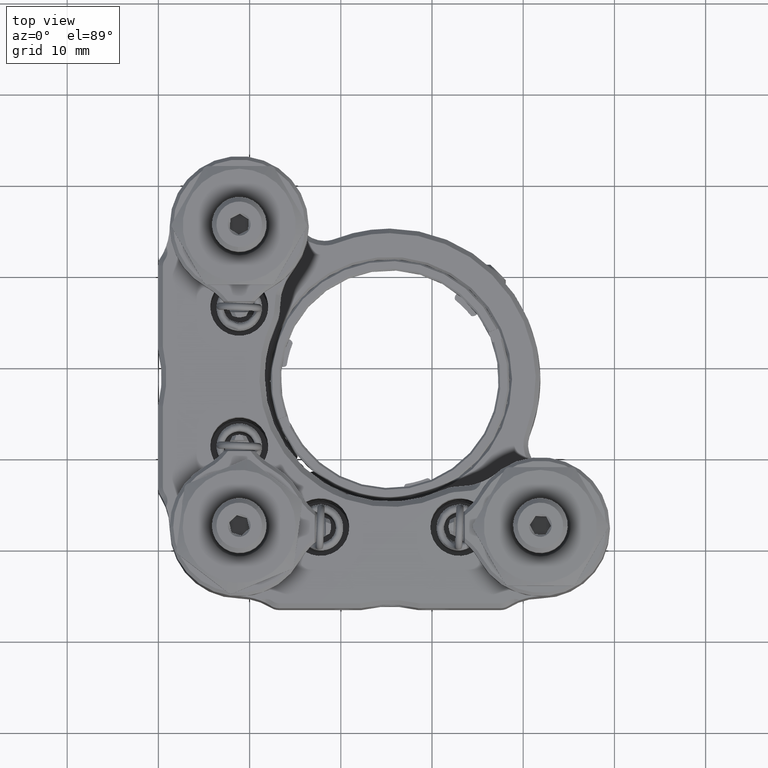
[diagram: clean part render]
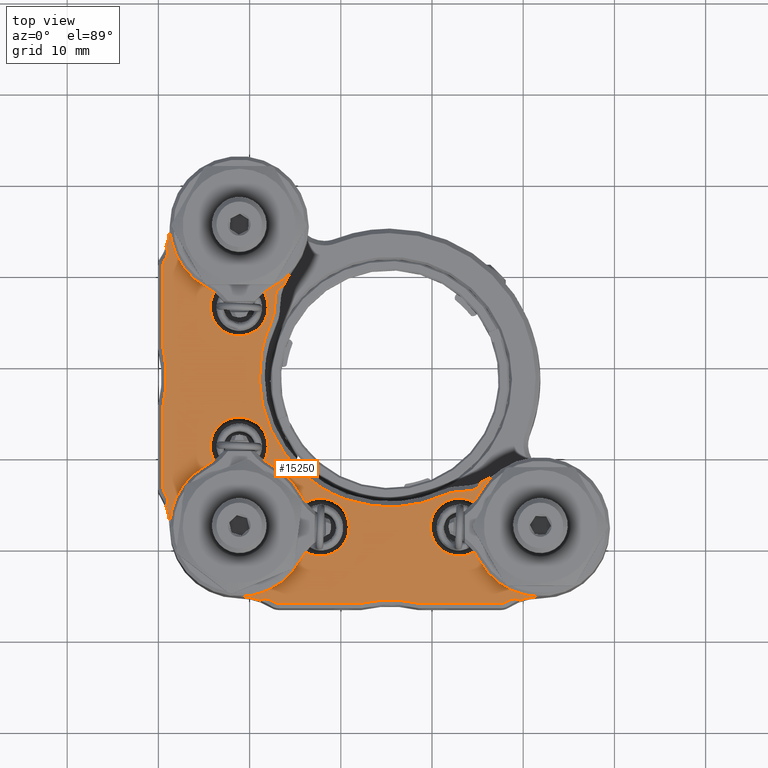
[diagram: same view with one face highlighted and labeled with its STEP entity id]
A machine part, top view. The second image highlights one B-rep face of the part: STEP entity #15250.
In plain terms, the highlighted planar face has unit normal (0, 0, 1).
Its self-contained STEP definition (entity closure, byte-faithful):
#50 = CARTESIAN_POINT ( 'NONE',  ( 0.5157462184768729641, 25.54099495467687575, 38.37670909685328979 ) ) ;
#53 = CIRCLE ( 'NONE', #12682, 6.477000000000017188 ) ;
#54 = AXIS2_PLACEMENT_3D ( 'NONE', #5167, #3294, #23692 ) ;
#154 = VERTEX_POINT ( 'NONE', #13877 ) ;
#274 = CARTESIAN_POINT ( 'NONE',  ( 0.8073501095597914734, 27.29595203836036532, 38.37670909685328269 ) ) ;
#332 = AXIS2_PLACEMENT_3D ( 'NONE', #8948, #13025, #5494 ) ;
#442 = CARTESIAN_POINT ( 'NONE',  ( 11.11921792218020855, 4.087737074255297642, 38.37670909685317611 ) ) ;
#454 = CARTESIAN_POINT ( 'NONE',  ( 37.79965140587442818, 3.782039316883831770, 38.37670909685321874 ) ) ;
#530 = CARTESIAN_POINT ( 'NONE',  ( 0.5056007673306296413, 31.75692873305170494, 38.37670909685328269 ) ) ;
#630 = EDGE_CURVE ( 'NONE', #10352, #3579, #14414, .T. ) ;
#634 = CARTESIAN_POINT ( 'NONE',  ( 0.6779026985890350687, 26.33265588743645935, 38.37670909685329690 ) ) ;
#643 = VECTOR ( 'NONE', #23994, 1000.000000000000000 ) ;
#751 = CARTESIAN_POINT ( 'NONE',  ( 0.7934872215583396171, 41.57520769976713382, 38.37670909685657250 ) ) ;
#753 = CARTESIAN_POINT ( 'NONE',  ( 0.6909074053572769047, 26.40853253802943357, 38.37670909685328979 ) ) ;
#786 = CARTESIAN_POINT ( 'NONE',  ( 0.8224864522627211016, 41.62456706311347432, 38.37670909685328979 ) ) ;
#812 = CARTESIAN_POINT ( 'NONE',  ( 0.5034280512785129780, 40.91932504264391213, 38.37670909685322584 ) ) ;
#816 = CARTESIAN_POINT ( 'NONE',  ( 37.86612365519187051, 3.801313710621909703, 38.37670909685322584 ) ) ;
#847 = CIRCLE ( 'NONE', #10313, 3.175000000000000711 ) ;
#931 = DIRECTION ( 'NONE',  ( -0.000000000000000000, -0.000000000000000000, -1.000000000000000000 ) ) ;
#976 = CARTESIAN_POINT ( 'NONE',  ( 25.38411258108517998, 14.28715967470755643, 38.37670909685328979 ) ) ;
#1050 = CARTESIAN_POINT ( 'NONE',  ( 28.57800755649700264, 3.750010360916995467, 38.37670909685355269 ) ) ;
#1061 = AXIS2_PLACEMENT_3D ( 'NONE', #20661, #5604, #13378 ) ;
#1102 = CARTESIAN_POINT ( 'NONE',  ( 11.96478324836953355, 33.60161499620866010, 38.37670909685328979 ) ) ;
#1142 = CARTESIAN_POINT ( 'NONE',  ( 33.19523443443182487, 15.99604701514680727, 38.37670909685328979 ) ) ;
#1171 = DIRECTION ( 'NONE',  ( -0.000000000000000000, -0.000000000000000000, -1.000000000000000000 ) ) ;
#1219 = CARTESIAN_POINT ( 'NONE',  ( 13.04442159254060307, 21.36758729914661359, 38.37670909685330400 ) ) ;
#1324 = CARTESIAN_POINT ( 'NONE',  ( 0.4972081628125202823, 25.41955961701130207, 38.37670909685325427 ) ) ;
#1332 = EDGE_CURVE ( 'NONE', #1992, #13361, #53, .T. ) ;
#1335 = CARTESIAN_POINT ( 'NONE',  ( 12.38436093444902397, 34.61800084301665237, 38.37670909685328979 ) ) ;
#1354 = EDGE_CURVE ( 'NONE', #13373, #4668, #7536, .T. ) ;
#1373 = CARTESIAN_POINT ( 'NONE',  ( 33.06035827406286387, 15.99498661411283962, 38.37670909685328979 ) ) ;
#1375 = EDGE_CURVE ( 'NONE', #1872, #4503, #13849, .T. ) ;
#1421 = VERTEX_POINT ( 'NONE', #50 ) ;
#1443 = CARTESIAN_POINT ( 'NONE',  ( 22.11588630664790855, 3.748541728913777682, 38.37670909685328979 ) ) ;
#1456 = CARTESIAN_POINT ( 'NONE',  ( 29.67614439951547212, 14.97670351789416721, 38.37670909685329690 ) ) ;
#1459 = B_SPLINE_CURVE_WITH_KNOTS ( 'NONE', 3,
 ( #18095, #19822, #17614, #4634, #21926 ),
 .UNSPECIFIED., .F., .F.,
 ( 4, 1, 4 ),
 ( 0.000000000000000000, 0.0001717361873785056123, 0.0003066707525924578523 ),
 .UNSPECIFIED. ) ;
#1478 = ORIENTED_EDGE ( 'NONE', *, *, #4824, .F. ) ;
#1497 = CARTESIAN_POINT ( 'NONE',  ( 15.55098712502350367, 15.76245352512693110, 38.37670909685328979 ) ) ;
#1508 = ORIENTED_EDGE ( 'NONE', *, *, #19069, .T. ) ;
#1569 = EDGE_CURVE ( 'NONE', #13072, #15829, #20440, .T. ) ;
#1672 = AXIS2_PLACEMENT_3D ( 'NONE', #6050, #17281, #15673 ) ;
#1675 = AXIS2_PLACEMENT_3D ( 'NONE', #10264, #21499, #4337 ) ;
#1749 = ORIENTED_EDGE ( 'NONE', *, *, #6263, .F. ) ;
#1795 = DIRECTION ( 'NONE',  ( -1.000000000000000000, 0.000000000000000000, 0.000000000000000000 ) ) ;
#1803 = VERTEX_POINT ( 'NONE', #1497 ) ;
#1846 = CIRCLE ( 'NONE', #1061, 3.175000000000000711 ) ;
#1851 = CARTESIAN_POINT ( 'NONE',  ( 22.50989134016566950, 3.817717048794514678, 38.37670909685327558 ) ) ;
#1872 = VERTEX_POINT ( 'NONE', #17542 ) ;
#1892 = FACE_OUTER_BOUND ( 'NONE', #2750, .T. ) ;
#1912 = CARTESIAN_POINT ( 'NONE',  ( 12.87492903203330386, 37.61571259436085057, 38.37670909685328979 ) ) ;
#1917 = CARTESIAN_POINT ( 'NONE',  ( 0.5989083507306505183, 16.00086451552266453, 38.37670909685323295 ) ) ;
#1923 = CARTESIAN_POINT ( 'NONE',  ( 32.06173728222097452, 15.88180540215039116, 38.37670909685328269 ) ) ;
#1964 = ORIENTED_EDGE ( 'NONE', *, *, #16211, .T. ) ;
#1992 = VERTEX_POINT ( 'NONE', #16183 ) ;
#2012 = AXIS2_PLACEMENT_3D ( 'NONE', #18091, #1171, #7459 ) ;
#2017 = VERTEX_POINT ( 'NONE', #6548 ) ;
#2071 = AXIS2_PLACEMENT_3D ( 'NONE', #22073, #16757, #1795 ) ;
#2083 = EDGE_CURVE ( 'NONE', #23761, #7370, #3066, .T. ) ;
#2162 = CARTESIAN_POINT ( 'NONE',  ( 31.42067041796330074, 15.66202038868159541, 38.37670909685328979 ) ) ;
#2172 = CARTESIAN_POINT ( 'NONE',  ( 12.87492903203330386, 37.61571259436085057, 38.37670909685328979 ) ) ;
#2181 = B_SPLINE_CURVE_WITH_KNOTS ( 'NONE', 3,
 ( #17730, #13778, #15521, #6013, #4381, #4021, #17366, #11823, #812, #13892, #7968, #21314 ),
 .UNSPECIFIED., .F., .F.,
 ( 4, 1, 1, 1, 1, 1, 1, 1, 1, 4 ),
 ( 7.410741937918042371E-18, 6.788893391203133852E-05, 0.0001353486219821869519, 0.0002025145720739857504, 0.0002695107963978392632, 0.0003364539762344835637, 0.0004022610529734882835, 0.0004682380276493808844, 0.0005345027875534732412, 0.0006011840429156051473 ),
 .UNSPECIFIED. ) ;
#2210 = CARTESIAN_POINT ( 'NONE',  ( 34.60385525189228417, 16.17568582302490654, 38.37670909685329690 ) ) ;
#2250 = AXIS2_PLACEMENT_3D ( 'NONE', #8081, #13292, #6129 ) ;
#2315 = CARTESIAN_POINT ( 'NONE',  ( 22.11588630664790855, 3.748541728913777682, 38.37670909685328979 ) ) ;
#2334 = DIRECTION ( 'NONE',  ( -0.000000000000000000, -0.000000000000000000, -1.000000000000000000 ) ) ;
#2398 = VERTEX_POINT ( 'NONE', #4660 ) ;
#2444 = CIRCLE ( 'NONE', #20617, 1.270000000000014229 ) ;
#2479 = CARTESIAN_POINT ( 'NONE',  ( 0.5157462184771712810, 31.70719983981903312, 38.37670909685329690 ) ) ;
#2487 = CARTESIAN_POINT ( 'NONE',  ( 34.59286376082986436, 9.372721176830863143, 38.37670909685328979 ) ) ;
#2511 = ORIENTED_EDGE ( 'NONE', *, *, #630, .T. ) ;
#2528 = CARTESIAN_POINT ( 'NONE',  ( 37.66637937900900113, 3.756373714913335160, 38.37670909685321874 ) ) ;
#2579 = AXIS2_PLACEMENT_3D ( 'NONE', #4429, #11982, #2804 ) ;
#2655 = AXIS2_PLACEMENT_3D ( 'NONE', #8976, #14666, #14788 ) ;
#2744 = EDGE_CURVE ( 'NONE', #20243, #1992, #3646, .T. ) ;
#2750 = EDGE_LOOP ( 'NONE', ( #15789, #1749, #20061, #1478, #17041, #21359, #8711, #19368, #23674, #3123, #16647, #22559, #6528, #16375, #4289, #21969, #3576, #22901, #9254, #23055, #14993, #8046, #9498, #21907, #14005, #6829, #17867, #8850, #13639, #2511, #6519, #7160, #21742, #5016, #9512, #9898, #17630, #12891, #1508, #20845, #8372, #9209, #5524, #17102, #2801, #16379, #3435, #9116, #6124, #4059, #15035, #16227, #4970, #23203, #16897, #14808, #1964, #21046, #14595, #16311, #7668, #13124, #24238, #14259 ) ) ;
#2801 = ORIENTED_EDGE ( 'NONE', *, *, #9847, .T. ) ;
#2804 = DIRECTION ( 'NONE',  ( 1.000000000000000000, -1.419489643766718154E-14, 0.000000000000000000 ) ) ;
#2809 = CARTESIAN_POINT ( 'NONE',  ( 11.96074622682672839, 33.59106138881092107, 38.37670909685330400 ) ) ;
#2841 = CIRCLE ( 'NONE', #1675, 1.270000000000014229 ) ;
#2888 = EDGE_CURVE ( 'NONE', #9087, #5999, #19029, .T. ) ;
#2912 = CARTESIAN_POINT ( 'NONE',  ( 14.77716877998100564, 40.33147912102782584, 38.37670909685328979 ) ) ;
#2936 = B_SPLINE_CURVE_WITH_KNOTS ( 'NONE', 3,
 ( #5231, #1373, #1142, #6821, #23869, #18179, #20391, #24235, #12507 ),
 .UNSPECIFIED., .F., .F.,
 ( 4, 1, 1, 1, 1, 1, 4 ),
 ( 0.000000000000000000, 0.1464167915703638023, 0.2930927779366250263, 0.4399209478628879344, 0.6268390282286024906, 0.8136058664721685929, 1.000000000000000000 ),
 .UNSPECIFIED. ) ;
#2937 = CARTESIAN_POINT ( 'NONE',  ( 16.28853422908613524, 17.47872148643134693, 38.37670909685330400 ) ) ;
#3011 = DIRECTION ( 'NONE',  ( 1.000000000000000000, 0.000000000000000000, 0.000000000000000000 ) ) ;
#3024 = EDGE_CURVE ( 'NONE', #16133, #6749, #17453, .T. ) ;
#3032 = EDGE_CURVE ( 'NONE', #8537, #8649, #22993, .T. ) ;
#3052 = VERTEX_POINT ( 'NONE', #24408 ) ;
#3063 = CARTESIAN_POINT ( 'NONE',  ( 11.61439956670863261, 24.69039808305371864, 38.37670909685328269 ) ) ;
#3066 = B_SPLINE_CURVE_WITH_KNOTS ( 'NONE', 3,
 ( #13962, #751, #23336, #10253, #14083 ),
 .UNSPECIFIED., .F., .F.,
 ( 4, 1, 4 ),
 ( 7.573910767901059648E-18, 0.0001717361873785664631, 0.0003066707525924598039 ),
 .UNSPECIFIED. ) ;
#3123 = ORIENTED_EDGE ( 'NONE', *, *, #19022, .T. ) ;
#3170 = CARTESIAN_POINT ( 'NONE',  ( 22.16661395337649054, 3.750153826447390149, 38.37670909685326848 ) ) ;
#3178 = EDGE_CURVE ( 'NONE', #8781, #20095, #11582, .T. ) ;
#3183 = VERTEX_POINT ( 'NONE', #18958 ) ;
#3185 = CARTESIAN_POINT ( 'NONE',  ( 23.57972695046473532, 14.42853370877505448, 38.37670909685328979 ) ) ;
#3249 = CARTESIAN_POINT ( 'NONE',  ( 29.50495625950396317, 5.364638560672374545, 38.37670909685328979 ) ) ;
#3294 = DIRECTION ( 'NONE',  ( -0.000000000000000000, -0.000000000000000000, -1.000000000000000000 ) ) ;
#3305 = CARTESIAN_POINT ( 'NONE',  ( 11.35502292562923721, 25.75232571216070454, 38.37670909685328979 ) ) ;
#3386 = CIRCLE ( 'NONE', #4981, 3.174999999999997158 ) ;
#3435 = ORIENTED_EDGE ( 'NONE', *, *, #15772, .T. ) ;
#3444 = CARTESIAN_POINT ( 'NONE',  ( 8.861151733613292336, 12.11409739724833301, 38.37670909685328979 ) ) ;
#3559 = CARTESIAN_POINT ( 'NONE',  ( 0.4955960652788873877, 16.45816576687524702, 38.37670909685329690 ) ) ;
#3574 = CARTESIAN_POINT ( 'NONE',  ( 38.37162139947853490, 4.075432115897538843, 38.37670909685328979 ) ) ;
#3576 = ORIENTED_EDGE ( 'NONE', *, *, #14582, .T. ) ;
#3579 = VERTEX_POINT ( 'NONE', #20422 ) ;
#3584 = CARTESIAN_POINT ( 'NONE',  ( 28.22835391816153106, 3.818546780173556421, 38.37670909685328269 ) ) ;
#3620 = EDGE_CURVE ( 'NONE', #20935, #8649, #18261, .T. ) ;
#3646 = CIRCLE ( 'NONE', #22577, 7.619999999999767404 ) ;
#3649 = CIRCLE ( 'NONE', #1672, 3.175000000000000711 ) ;
#3654 = CARTESIAN_POINT ( 'NONE',  ( 1.241151733613804486, 45.13409739724862391, 38.37670909685328979 ) ) ;
#3682 = DIRECTION ( 'NONE',  ( -1.000000000000000000, 0.000000000000000000, 0.000000000000000000 ) ) ;
#3824 = CARTESIAN_POINT ( 'NONE',  ( 0.5157462184771712810, 31.70719983981903312, 38.37670909685329690 ) ) ;
#3875 = DIRECTION ( 'NONE',  ( 1.000000000000000000, 0.000000000000000000, -0.000000000000000000 ) ) ;
#3985 = CARTESIAN_POINT ( 'NONE',  ( 35.38451088181182058, 17.03809650157964128, 38.37670909685328979 ) ) ;
#4021 = CARTESIAN_POINT ( 'NONE',  ( 0.5483680469870982899, 41.11906931882678151, 38.37670909685322584 ) ) ;
#4059 = ORIENTED_EDGE ( 'NONE', *, *, #19664, .T. ) ;
#4087 = CARTESIAN_POINT ( 'NONE',  ( 0.6735713699257785958, 26.30794381408321669, 38.37670909685328269 ) ) ;
#4093 = EDGE_CURVE ( 'NONE', #14717, #19761, #2936, .T. ) ;
#4209 = VERTEX_POINT ( 'NONE', #15217 ) ;
#4275 = CARTESIAN_POINT ( 'NONE',  ( 37.60052514619064112, 3.749745544953984489, 38.37670909685321874 ) ) ;
#4289 = ORIENTED_EDGE ( 'NONE', *, *, #6775, .F. ) ;
#4316 = CARTESIAN_POINT ( 'NONE',  ( 34.36276693072596089, 16.12787469566814025, 38.37670909685328979 ) ) ;
#4337 = DIRECTION ( 'NONE',  ( 1.000000000000000000, 0.000000000000000000, 0.000000000000000000 ) ) ;
#4354 = EDGE_CURVE ( 'NONE', #4503, #16860, #2444, .T. ) ;
#4381 = CARTESIAN_POINT ( 'NONE',  ( 0.5717616158679867944, 41.18440364421154953, 38.37670909685321163 ) ) ;
#4387 = CARTESIAN_POINT ( 'NONE',  ( 38.10971483574125784, 3.915952070383740935, 38.37670909685328979 ) ) ;
#4429 = CARTESIAN_POINT ( 'NONE',  ( 41.88115173361359211, -1.982902602751784205, 38.37670909685328979 ) ) ;
#4449 = CARTESIAN_POINT ( 'NONE',  ( 12.68769110315134085, 3.882203412879674964, 38.37670909685323295 ) ) ;
#4474 = CARTESIAN_POINT ( 'NONE',  ( 13.20522010324032003, 3.748541728913791449, 38.37670909685328979 ) ) ;
#4503 = VERTEX_POINT ( 'NONE', #7489 ) ;
#4510 = CARTESIAN_POINT ( 'NONE',  ( 37.99438461533913625, 3.851854014365486911, 38.37670909685322584 ) ) ;
#4563 = EDGE_CURVE ( 'NONE', #2398, #22168, #8784, .T. ) ;
#4589 = LINE ( 'NONE', #12136, #16088 ) ;
#4634 = CARTESIAN_POINT ( 'NONE',  ( 12.59457586785475058, 3.939998197404931179, 38.37670909685657961 ) ) ;
#4653 = DIRECTION ( 'NONE',  ( 1.000000000000000000, 5.356564693459339226E-15, 0.000000000000000000 ) ) ;
#4660 = CARTESIAN_POINT ( 'NONE',  ( 35.19131634220313742, 8.465741269369379651, 38.37670909685328979 ) ) ;
#4668 = VERTEX_POINT ( 'NONE', #13423 ) ;
#4680 = CARTESIAN_POINT ( 'NONE',  ( 30.41001246349899390, 15.24141503093074590, 38.37670909685329690 ) ) ;
#4722 = VERTEX_POINT ( 'NONE', #11576 ) ;
#4757 = LINE ( 'NONE', #11011, #643 ) ;
#4793 = CARTESIAN_POINT ( 'NONE',  ( 0.5059964593831558499, 25.49355458321001677, 38.37670909685326137 ) ) ;
#4811 = CARTESIAN_POINT ( 'NONE',  ( 26.47055007258569148, 14.34424125510832759, 38.37670909685328979 ) ) ;
#4824 = EDGE_CURVE ( 'NONE', #8239, #7594, #17078, .T. ) ;
#4889 = CARTESIAN_POINT ( 'NONE',  ( 28.47886205368861567, 3.763109335661994237, 38.37670909685329690 ) ) ;
#4932 = CARTESIAN_POINT ( 'NONE',  ( 24.30103342469781325, 14.35528927151967338, 38.37670909685328269 ) ) ;
#4970 = ORIENTED_EDGE ( 'NONE', *, *, #18121, .F. ) ;
#4981 = AXIS2_PLACEMENT_3D ( 'NONE', #8526, #23856, #21876 ) ;
#5016 = ORIENTED_EDGE ( 'NONE', *, *, #18230, .F. ) ;
#5060 = CIRCLE ( 'NONE', #21219, 3.175000000000000711 ) ;
#5064 = CARTESIAN_POINT ( 'NONE',  ( 19.89970389009817353, 15.39918467721070705, 38.37670909685329690 ) ) ;
#5147 = CARTESIAN_POINT ( 'NONE',  ( 15.61061057018902787, 24.49029287135772037, 38.37670909685328979 ) ) ;
#5167 = CARTESIAN_POINT ( 'NONE',  ( -5.235848266386459393, 45.13409739724875891, 38.37670909685328979 ) ) ;
#5168 = CARTESIAN_POINT ( 'NONE',  ( 0.4958468254235127159, 25.39406388617263488, 38.37670909685325427 ) ) ;
#5184 = CARTESIAN_POINT ( 'NONE',  ( 30.36450516560745072, 15.22380687869121907, 38.37670909685329690 ) ) ;
#5191 = AXIS2_PLACEMENT_3D ( 'NONE', #3249, #12532, #14882 ) ;
#5231 = CARTESIAN_POINT ( 'NONE',  ( 32.99297983232990816, 15.99445688247542385, 38.37670909685328979 ) ) ;
#5232 = CARTESIAN_POINT ( 'NONE',  ( 12.73354826879072732, 35.67853870034507935, 38.37670909685328979 ) ) ;
#5249 = CARTESIAN_POINT ( 'NONE',  ( 0.9935581842928256080, 14.98703000765439697, 38.37670909685329690 ) ) ;
#5319 = DIRECTION ( 'NONE',  ( -0.000000000000000000, -0.000000000000000000, 1.000000000000000000 ) ) ;
#5349 = CARTESIAN_POINT ( 'NONE',  ( 0.6940234623374341716, 30.82469068286791369, 38.37670909685328979 ) ) ;
#5449 = CARTESIAN_POINT ( 'NONE',  ( 13.55112826181630226, 38.56214800916779950, 38.37670909685329690 ) ) ;
#5470 = CARTESIAN_POINT ( 'NONE',  ( 0.7548869613054425276, 30.41019185884011833, 38.37670909685328979 ) ) ;
#5494 = DIRECTION ( 'NONE',  ( -1.000000000000000000, 0.000000000000000000, 0.000000000000000000 ) ) ;
#5496 = DIRECTION ( 'NONE',  ( 0.000000000000000000, 0.000000000000000000, 1.000000000000000000 ) ) ;
#5524 = ORIENTED_EDGE ( 'NONE', *, *, #8772, .F. ) ;
#5580 = CIRCLE ( 'NONE', #54, 6.477000000000024293 ) ;
#5604 = DIRECTION ( 'NONE',  ( -0.000000000000000000, -0.000000000000000000, -1.000000000000000000 ) ) ;
#5646 = CARTESIAN_POINT ( 'NONE',  ( 0.4955960652788873877, 16.45816576687524702, 38.37670909685329690 ) ) ;
#5653 = CARTESIAN_POINT ( 'NONE',  ( 32.43240289522068309, 15.95459418391246409, 38.37670909685328979 ) ) ;
#5686 = CARTESIAN_POINT ( 'NONE',  ( 38.10971483574125784, 3.915952070383740935, 38.37670909685328979 ) ) ;
#5709 = CARTESIAN_POINT ( 'NONE',  ( 0.5157462184771712810, 31.70719983981903312, 38.37670909685329690 ) ) ;
#5771 = CARTESIAN_POINT ( 'NONE',  ( 31.88113468643270920, 15.83285988006845990, 38.37670909685328979 ) ) ;
#5772 = EDGE_CURVE ( 'NONE', #3052, #22732, #17604, .T. ) ;
#5837 = DIRECTION ( 'NONE',  ( 1.000000000000000000, -2.410454112056701981E-14, 0.000000000000000000 ) ) ;
#5855 = DIRECTION ( 'NONE',  ( -0.000000000000000000, -0.000000000000000000, -1.000000000000000000 ) ) ;
#5882 = CARTESIAN_POINT ( 'NONE',  ( 0.7417030516559215414, 15.76112852453236179, 38.37670909685657250 ) ) ;
#5924 = B_SPLINE_CURVE_WITH_KNOTS ( 'NONE', 3,
 ( #3574, #22470, #10992, #15076, #5686 ),
 .UNSPECIFIED., .F., .F.,
 ( 4, 1, 4 ),
 ( 2.409954872719146512E-17, 0.0001717361873784960713, 0.0003066707525924551960 ),
 .UNSPECIFIED. ) ;
#5960 = CARTESIAN_POINT ( 'NONE',  ( 0.7869925526974124175, 27.10424239367214128, 38.37670909685330400 ) ) ;
#5967 = CARTESIAN_POINT ( 'NONE',  ( 0.5018832821274912259, 31.78187945392570768, 38.37670909685331821 ) ) ;
#5979 = CARTESIAN_POINT ( 'NONE',  ( 1.241151733613526931, 12.11409739724833301, 38.37670909685328979 ) ) ;
#5999 = VERTEX_POINT ( 'NONE', #10347 ) ;
#6013 = CARTESIAN_POINT ( 'NONE',  ( 0.5989083507306648402, 41.24733027897404014, 38.37670909685321874 ) ) ;
#6020 = CARTESIAN_POINT ( 'NONE',  ( 32.99630792260517609, 23.05872893302826299, 38.37670909685328979 ) ) ;
#6038 = CARTESIAN_POINT ( 'NONE',  ( 0.4955960652788873877, 16.45816576687524702, 38.37670909685329690 ) ) ;
#6050 = CARTESIAN_POINT ( 'NONE',  ( 17.75115173361346876, 12.11409739724833301, 38.37670909685328979 ) ) ;
#6091 = CARTESIAN_POINT ( 'NONE',  ( 0.4956722723001658615, 31.87133091377226179, 38.37670909685326848 ) ) ;
#6124 = ORIENTED_EDGE ( 'NONE', *, *, #2888, .F. ) ;
#6129 = DIRECTION ( 'NONE',  ( 1.000000000000000000, -3.548724109416808402E-15, 0.000000000000000000 ) ) ;
#6240 = EDGE_CURVE ( 'NONE', #8781, #23945, #5580, .T. ) ;
#6263 = EDGE_CURVE ( 'NONE', #11548, #13759, #10252, .T. ) ;
#6290 = AXIS2_PLACEMENT_3D ( 'NONE', #6915, #5319, #12723 ) ;
#6366 = CARTESIAN_POINT ( 'NONE',  ( 41.88115173361350685, 4.494097397248490111, 38.37670909685328979 ) ) ;
#6393 = EDGE_CURVE ( 'NONE', #21935, #8537, #10558, .T. ) ;
#6396 = CARTESIAN_POINT ( 'NONE',  ( 41.88115173361342869, 12.11409739724833301, 38.37670909685328979 ) ) ;
#6429 = CARTESIAN_POINT ( 'NONE',  ( 12.94265206135238877, 3.782039316883916591, 38.37670909685321874 ) ) ;
#6445 = CARTESIAN_POINT ( 'NONE',  ( 29.50495625950411593, 18.86355623382385360, 38.37670909685328979 ) ) ;
#6519 = ORIENTED_EDGE ( 'NONE', *, *, #22338, .F. ) ;
#6528 = ORIENTED_EDGE ( 'NONE', *, *, #7590, .T. ) ;
#6548 = CARTESIAN_POINT ( 'NONE',  ( 38.10971483574125784, 3.915952070383740935, 38.37670909685328979 ) ) ;
#6604 = CARTESIAN_POINT ( 'NONE',  ( 20.92615173361346947, 12.11409739724833301, 38.37670909685328979 ) ) ;
#6619 = EDGE_CURVE ( 'NONE', #1421, #4209, #23776, .T. ) ;
#6640 = EDGE_CURVE ( 'NONE', #154, #10352, #847, .T. ) ;
#6663 = CARTESIAN_POINT ( 'NONE',  ( 12.86354231730621933, 21.68415005227346271, 38.37670909685330400 ) ) ;
#6736 = CARTESIAN_POINT ( 'NONE',  ( 28.50398306941670867, 3.758546430965483243, 38.37670909685328979 ) ) ;
#6749 = VERTEX_POINT ( 'NONE', #13733 ) ;
#6751 = AXIS2_PLACEMENT_3D ( 'NONE', #17961, #931, #18210 ) ;
#6761 = DIRECTION ( 'NONE',  ( -0.000000000000000000, -0.000000000000000000, -1.000000000000000000 ) ) ;
#6762 = CARTESIAN_POINT ( 'NONE',  ( 0.8347914106203585538, 14.37216358581490994, 38.37670909685329690 ) ) ;
#6775 = EDGE_CURVE ( 'NONE', #6749, #8858, #16632, .T. ) ;
#6779 = CARTESIAN_POINT ( 'NONE',  ( 12.77524609468842520, 21.84568494314090259, 38.37670909685329690 ) ) ;
#6821 = CARTESIAN_POINT ( 'NONE',  ( 33.39715813966010671, 16.00500017527552643, 38.37670909685329690 ) ) ;
#6829 = ORIENTED_EDGE ( 'NONE', *, *, #3620, .F. ) ;
#6840 = VERTEX_POINT ( 'NONE', #7931 ) ;
#6861 = CARTESIAN_POINT ( 'NONE',  ( 0.6630064067489199742, 15.88553429512048609, 38.37670909685328979 ) ) ;
#6901 = CARTESIAN_POINT ( 'NONE',  ( 30.36628667893015532, 15.22449335806238579, 38.37670909685330400 ) ) ;
#6915 = CARTESIAN_POINT ( 'NONE',  ( -0.2764418157071950599, 42.26116478684227218, 38.37670909685328979 ) ) ;
#6973 = CIRCLE ( 'NONE', #21546, 1.270000000000015561 ) ;
#6977 = DIRECTION ( 'NONE',  ( -0.000000000000000000, -0.000000000000000000, -1.000000000000000000 ) ) ;
#7128 = CARTESIAN_POINT ( 'NONE',  ( 22.14111822253773454, 3.748792489058386135, 38.37670909685327558 ) ) ;
#7160 = ORIENTED_EDGE ( 'NONE', *, *, #3178, .F. ) ;
#7180 = B_SPLINE_CURVE_WITH_KNOTS ( 'NONE', 3,
 ( #4387, #17735, #11941, #4510, #16002, #816, #454, #12185, #2528, #4275, #11828, #8333 ),
 .UNSPECIFIED., .F., .F.,
 ( 4, 1, 1, 1, 1, 1, 1, 1, 1, 4 ),
 ( 0.000000000000000000, 6.788893391202076755E-05, 0.0001353486219821802298, 0.0002025145720739760197, 0.0002695107963978333001, 0.0003364539762344799317, 0.0004022610529734794473, 0.0004682380276493770354, 0.0005345027875534671697, 0.0006011840429156051473 ),
 .UNSPECIFIED. ) ;
#7186 = CARTESIAN_POINT ( 'NONE',  ( 0.6713748408039892368, 30.95251861827819795, 38.37670909685329690 ) ) ;
#7194 = AXIS2_PLACEMENT_3D ( 'NONE', #18523, #15198, #9261 ) ;
#7259 = LINE ( 'NONE', #3559, #21978 ) ;
#7267 = EDGE_CURVE ( 'NONE', #14728, #13072, #23457, .T. ) ;
#7291 = CARTESIAN_POINT ( 'NONE',  ( 8.861151733613292336, 12.11409739724833301, 38.37670909685328979 ) ) ;
#7370 = VERTEX_POINT ( 'NONE', #23652 ) ;
#7387 = CARTESIAN_POINT ( 'NONE',  ( 28.62641716057850161, 3.748541728913715065, 38.37670909685325427 ) ) ;
#7426 = CARTESIAN_POINT ( 'NONE',  ( 12.61449817399354245, 35.13589714936236419, 38.37670909685328979 ) ) ;
#7459 = DIRECTION ( 'NONE',  ( 1.000000000000000000, 3.414809992080290862E-15, 0.000000000000000000 ) ) ;
#7467 = CARTESIAN_POINT ( 'NONE',  ( 0.4955960652789220822, 31.87936282421342682, 38.37670909685328979 ) ) ;
#7489 = CARTESIAN_POINT ( 'NONE',  ( 39.00821912320733986, 4.246503847927646902, 38.37670909685328979 ) ) ;
#7536 = CIRCLE ( 'NONE', #6751, 3.175000000000000711 ) ;
#7571 = EDGE_CURVE ( 'NONE', #7776, #2398, #21348, .T. ) ;
#7588 = VERTEX_POINT ( 'NONE', #5249 ) ;
#7590 = EDGE_CURVE ( 'NONE', #7776, #17835, #17012, .T. ) ;
#7594 = VERTEX_POINT ( 'NONE', #9664 ) ;
#7611 = CARTESIAN_POINT ( 'NONE',  ( 32.99297983232990816, 15.99445688247542385, 38.37670909685328979 ) ) ;
#7668 = ORIENTED_EDGE ( 'NONE', *, *, #18458, .F. ) ;
#7726 = CARTESIAN_POINT ( 'NONE',  ( 0.4967998813191559226, 16.39472398467108860, 38.37670909685323295 ) ) ;
#7776 = VERTEX_POINT ( 'NONE', #2487 ) ;
#7799 = CARTESIAN_POINT ( 'NONE',  ( 0.6752672816755024288, 26.31757502265822524, 38.37670909685328269 ) ) ;
#7856 = CARTESIAN_POINT ( 'NONE',  ( 5.686151733613645121, 36.24409739724833202, 38.37670909685328979 ) ) ;
#7861 = CARTESIAN_POINT ( 'NONE',  ( 11.73408434401946998, 4.246503847927716180, 38.37670909685328979 ) ) ;
#7908 = EDGE_CURVE ( 'NONE', #1803, #11870, #11101, .T. ) ;
#7931 = CARTESIAN_POINT ( 'NONE',  ( 0.8224864522627175489, 15.62362773138319127, 38.37670909685329690 ) ) ;
#7968 = CARTESIAN_POINT ( 'NONE',  ( 0.4959981744923967484, 40.81122040927216688, 38.37670909685321874 ) ) ;
#8046 = ORIENTED_EDGE ( 'NONE', *, *, #1569, .T. ) ;
#8047 = CARTESIAN_POINT ( 'NONE',  ( 0.5138843109931973130, 31.71540713226175967, 38.37670909685329690 ) ) ;
#8081 = CARTESIAN_POINT ( 'NONE',  ( 8.861151733613136017, -1.982902602751669630, 38.37670909685328979 ) ) ;
#8102 = CARTESIAN_POINT ( 'NONE',  ( 12.78957050157473496, 37.15713069935416968, 38.37670909685328979 ) ) ;
#8120 = AXIS2_PLACEMENT_3D ( 'NONE', #10001, #2334, #19252 ) ;
#8239 = VERTEX_POINT ( 'NONE', #7387 ) ;
#8274 = CARTESIAN_POINT ( 'NONE',  ( 12.81084548665015532, 3.824707279502906232, 38.37670909685322584 ) ) ;
#8288 = DIRECTION ( 'NONE',  ( -0.000000000000000000, -0.000000000000000000, -1.000000000000000000 ) ) ;
#8289 = CARTESIAN_POINT ( 'NONE',  ( 0.8224864522627175489, 15.62362773138319127, 38.37670909685329690 ) ) ;
#8331 = CARTESIAN_POINT ( 'NONE',  ( 28.62641716057850161, 3.748541728913715065, 38.37670909685325427 ) ) ;
#8333 = CARTESIAN_POINT ( 'NONE',  ( 37.53708336398648981, 3.748541728913728832, 38.37670909685328979 ) ) ;
#8348 = CARTESIAN_POINT ( 'NONE',  ( 8.861151733613208847, 4.494097397248562942, 38.37670909685328979 ) ) ;
#8372 = ORIENTED_EDGE ( 'NONE', *, *, #6619, .T. ) ;
#8387 = CIRCLE ( 'NONE', #17461, 6.477000000000007418 ) ;
#8471 = CARTESIAN_POINT ( 'NONE',  ( 13.78516344865819043, 38.63748849390084672, 38.37670909685328979 ) ) ;
#8497 = CARTESIAN_POINT ( 'NONE',  ( 23.22139133128986543, 14.47872009296042961, 38.37670909685328979 ) ) ;
#8526 = CARTESIAN_POINT ( 'NONE',  ( 32.99115173361346365, 12.11409739724832946, 38.37670909685328979 ) ) ;
#8537 = VERTEX_POINT ( 'NONE', #8471 ) ;
#8569 = CARTESIAN_POINT ( 'NONE',  ( 6.119775513196177741, 19.40238537003193642, 38.37670909685328979 ) ) ;
#8602 = CARTESIAN_POINT ( 'NONE',  ( 8.861151733613645831, 36.24409739724833202, 38.37670909685328979 ) ) ;
#8621 = CARTESIAN_POINT ( 'NONE',  ( 31.14244133446541341, 15.54205970111685176, 38.37670909685327558 ) ) ;
#8649 = VERTEX_POINT ( 'NONE', #2912 ) ;
#8711 = ORIENTED_EDGE ( 'NONE', *, *, #17084, .F. ) ;
#8727 = CARTESIAN_POINT ( 'NONE',  ( 22.28021686161072878, 3.766911308594771413, 38.37670909685327558 ) ) ;
#8742 = CARTESIAN_POINT ( 'NONE',  ( 11.52784288824395986, 32.23148331177023351, 38.37670909685329690 ) ) ;
#8772 = EDGE_CURVE ( 'NONE', #23162, #21474, #10165, .T. ) ;
#8781 = VERTEX_POINT ( 'NONE', #3654 ) ;
#8784 = CIRCLE ( 'NONE', #2071, 7.619999999999842011 ) ;
#8800 = AXIS2_PLACEMENT_3D ( 'NONE', #6020, #17248, #9346 ) ;
#8850 = ORIENTED_EDGE ( 'NONE', *, *, #10464, .T. ) ;
#8858 = VERTEX_POINT ( 'NONE', #17119 ) ;
#8937 = B_SPLINE_CURVE_WITH_KNOTS ( 'NONE', 3,
 ( #9714, #2162, #13063, #14923, #5771, #1923, #22556, #5653, #18846, #9471, #22435, #7611 ),
 .UNSPECIFIED., .F., .F.,
 ( 4, 1, 1, 1, 1, 1, 1, 1, 1, 4 ),
 ( 0.000000000000000000, 0.1099219559163181481, 0.2198965468266057544, 0.3299165306629475714, 0.4399671958950055473, 0.5520299846909049180, 0.6640825208263365642, 0.7761042532496053026, 0.8880793763706528177, 1.000000000000000000 ),
 .UNSPECIFIED. ) ;
#8948 = CARTESIAN_POINT ( 'NONE',  ( 8.861151733613292336, 12.11409739724833301, 38.37670909685328979 ) ) ;
#8976 = CARTESIAN_POINT ( 'NONE',  ( 21.23734720772224449, 18.86355623382385360, 38.37670909685328979 ) ) ;
#8991 = EDGE_CURVE ( 'NONE', #7370, #14065, #2181, .T. ) ;
#9004 = CARTESIAN_POINT ( 'NONE',  ( 14.03401444084066974, 19.84976733529955695, 38.37670909685328979 ) ) ;
#9077 = EDGE_CURVE ( 'NONE', #3183, #8239, #4757, .T. ) ;
#9087 = VERTEX_POINT ( 'NONE', #8569 ) ;
#9116 = ORIENTED_EDGE ( 'NONE', *, *, #22296, .F. ) ;
#9209 = ORIENTED_EDGE ( 'NONE', *, *, #21301, .F. ) ;
#9211 = AXIS2_PLACEMENT_3D ( 'NONE', #22402, #15374, #3875 ) ;
#9241 = DIRECTION ( 'NONE',  ( 1.365923996832129637E-15, 1.000000000000000000, 1.365923996832112874E-15 ) ) ;
#9254 = ORIENTED_EDGE ( 'NONE', *, *, #4093, .F. ) ;
#9261 = DIRECTION ( 'NONE',  ( 1.000000000000000000, 0.000000000000000000, 0.000000000000000000 ) ) ;
#9283 = DIRECTION ( 'NONE',  ( -0.000000000000000000, -0.000000000000000000, -1.000000000000000000 ) ) ;
#9346 = DIRECTION ( 'NONE',  ( 1.000000000000000000, 1.606969408037802636E-15, 0.000000000000000000 ) ) ;
#9440 = PLANE ( 'NONE',  #9211 ) ;
#9464 = DIRECTION ( 'NONE',  ( 0.000000000000000000, 0.000000000000000000, 1.000000000000000000 ) ) ;
#9471 = CARTESIAN_POINT ( 'NONE',  ( 32.80706079062334624, 15.99184784444456930, 38.37670909685329690 ) ) ;
#9498 = ORIENTED_EDGE ( 'NONE', *, *, #11083, .T. ) ;
#9512 = ORIENTED_EDGE ( 'NONE', *, *, #24300, .F. ) ;
#9529 = CARTESIAN_POINT ( 'NONE',  ( 0.5527938928083925285, 31.53933109440058757, 38.37670909685330400 ) ) ;
#9587 = CARTESIAN_POINT ( 'NONE',  ( 0.5483680469870810814, 16.12912547566991961, 38.37670909685323295 ) ) ;
#9649 = CARTESIAN_POINT ( 'NONE',  ( 0.7755347312584568442, 30.24305909778279400, 38.37670909685330400 ) ) ;
#9658 = CARTESIAN_POINT ( 'NONE',  ( 0.5101636720271552905, 31.73180771732345917, 38.37670909685329690 ) ) ;
#9664 = CARTESIAN_POINT ( 'NONE',  ( 28.45425417618413633, 3.768691882111999014, 38.37670909685328979 ) ) ;
#9692 = CARTESIAN_POINT ( 'NONE',  ( -0.2764418157071950599, 14.98703000765439697, 38.37670909685329690 ) ) ;
#9714 = CARTESIAN_POINT ( 'NONE',  ( 31.36505517938176268, 15.63730659808388523, 38.37670909685328979 ) ) ;
#9722 = AXIS2_PLACEMENT_3D ( 'NONE', #17144, #17278, #17027 ) ;
#9756 = CARTESIAN_POINT ( 'NONE',  ( 34.36276693072596089, 16.12787469566814025, 38.37670909685328979 ) ) ;
#9847 = EDGE_CURVE ( 'NONE', #6840, #7588, #10902, .T. ) ;
#9894 = CARTESIAN_POINT ( 'NONE',  ( 0.7973034523629510817, 27.19922484808159879, 38.37670909685329690 ) ) ;
#9898 = ORIENTED_EDGE ( 'NONE', *, *, #2083, .T. ) ;
#9903 = CARTESIAN_POINT ( 'NONE',  ( 0.4958245598883168626, 31.85528042066255949, 38.37670909685322584 ) ) ;
#9969 = CARTESIAN_POINT ( 'NONE',  ( 11.73408434401946643, 2.976503847927701951, 38.37670909685328979 ) ) ;
#10001 = CARTESIAN_POINT ( 'NONE',  ( 8.861151733613644055, 21.00409739724833358, 38.37670909685328979 ) ) ;
#10017 = CARTESIAN_POINT ( 'NONE',  ( 0.7420473664653468582, 26.73674937535789198, 38.37670909685328979 ) ) ;
#10057 = VERTEX_POINT ( 'NONE', #6762 ) ;
#10071 = CARTESIAN_POINT ( 'NONE',  ( 28.55364821320353386, 3.751994507819634617, 38.37670909685323295 ) ) ;
#10135 = CARTESIAN_POINT ( 'NONE',  ( 0.7797264589498501541, 30.20743644258008587, 38.37670909685329690 ) ) ;
#10165 = B_SPLINE_CURVE_WITH_KNOTS ( 'NONE', 3,
 ( #20826, #12805, #24287, #1917, #11319, #9587, #22550, #20455, #15156, #7726, #20324, #5646 ),
 .UNSPECIFIED., .F., .F.,
 ( 4, 1, 1, 1, 1, 1, 1, 1, 1, 4 ),
 ( 7.589415207398531038E-19, 6.788893391202587685E-05, 0.0001353486219821840517, 0.0002025145720739922556, 0.0002695107963978422448, 0.0003364539762345038925, 0.0004022610529734953850, 0.0004682380276493931359, 0.0005345027875534878780, 0.0006011840429156226030 ),
 .UNSPECIFIED. ) ;
#10202 = CARTESIAN_POINT ( 'NONE',  ( 31.36505517938176268, 15.63730659808388523, 38.37670909685328979 ) ) ;
#10252 = B_SPLINE_CURVE_WITH_KNOTS ( 'NONE', 3,
 ( #10468, #8727, #12812, #17999, #14553, #16523, #3170, #7128, #10832, #1443 ),
 .UNSPECIFIED., .F., .F.,
 ( 4, 1, 1, 1, 1, 1, 1, 4 ),
 ( 0.000000000000000000, 2.433994098069797854E-05, 4.863949341351982630E-05, 7.291449240907639084E-05, 9.718058732137874753E-05, 0.0001226095285269497223, 0.0001480637752875925428, 0.0001735615155477096940 ),
 .UNSPECIFIED. ) ;
#10253 = CARTESIAN_POINT ( 'NONE',  ( 0.6870525337700547075, 41.40067326300700756, 38.37670909685657250 ) ) ;
#10264 = CARTESIAN_POINT ( 'NONE',  ( -0.2764418157071950599, 42.26116478684227218, 38.37670909685328979 ) ) ;
#10313 = AXIS2_PLACEMENT_3D ( 'NONE', #8602, #14304, #23693 ) ;
#10347 = CARTESIAN_POINT ( 'NONE',  ( 5.212795605734572568, 18.80393278865866691, 38.37670909685328979 ) ) ;
#10352 = VERTEX_POINT ( 'NONE', #7856 ) ;
#10363 = CARTESIAN_POINT ( 'NONE',  ( 19.07768561949591302, 15.77850265189336199, 38.37670909685328979 ) ) ;
#10369 = CARTESIAN_POINT ( 'NONE',  ( 5.686151733613641568, 21.00409739724833358, 38.37670909685328979 ) ) ;
#10375 = CARTESIAN_POINT ( 'NONE',  ( 12.87617981203497486, 3.801313710622000741, 38.37670909685322584 ) ) ;
#10464 = EDGE_CURVE ( 'NONE', #14416, #154, #1846, .T. ) ;
#10468 = CARTESIAN_POINT ( 'NONE',  ( 22.28804929104198607, 3.768691882111749436, 38.37670909685328979 ) ) ;
#10488 = CARTESIAN_POINT ( 'NONE',  ( 11.03275600481557106, 27.55312507587875359, 38.37670909685329690 ) ) ;
#10522 = DIRECTION ( 'NONE',  ( 0.000000000000000000, 0.000000000000000000, 1.000000000000000000 ) ) ;
#10558 = B_SPLINE_CURVE_WITH_KNOTS ( 'NONE', 3,
 ( #22478, #16570, #11118, #14597, #5449, #20506 ),
 .UNSPECIFIED., .F., .F.,
 ( 4, 2, 4 ),
 ( 0.000000000000000000, 0.5000000000000000000, 1.000000000000000000 ),
 .UNSPECIFIED. ) ;
#10611 = CARTESIAN_POINT ( 'NONE',  ( 11.23181361473330497, 30.81157762427039870, 38.37670909685331111 ) ) ;
#10629 = DIRECTION ( 'NONE',  ( 1.000000000000000000, -2.185478394931410180E-15, 0.000000000000000000 ) ) ;
#10638 = B_SPLINE_CURVE_WITH_KNOTS ( 'NONE', 3,
 ( #22731, #13467, #20997, #11624, #2210, #9756 ),
 .UNSPECIFIED., .F., .F.,
 ( 4, 2, 4 ),
 ( 0.000000000000000000, 0.5000000000000000000, 1.000000000000000000 ),
 .UNSPECIFIED. ) ;
#10682 = CARTESIAN_POINT ( 'NONE',  ( 21.23734720772239726, 5.364638560672374545, 38.37670909685328979 ) ) ;
#10725 = CARTESIAN_POINT ( 'NONE',  ( 22.13583710122836834, 14.67310542938333562, 38.37670909685328979 ) ) ;
#10742 = DIRECTION ( 'NONE',  ( -0.000000000000000000, -0.000000000000000000, -1.000000000000000000 ) ) ;
#10774 = CARTESIAN_POINT ( 'NONE',  ( 0.8347914106204418205, 42.87603120868145368, 38.37670909685317611 ) ) ;
#10832 = CARTESIAN_POINT ( 'NONE',  ( 22.12430173022738344, 3.748625363182293224, 38.37670909685326848 ) ) ;
#10847 = CARTESIAN_POINT ( 'NONE',  ( 12.35355493102227875, 22.65227286820592312, 38.37670909685330400 ) ) ;
#10902 = CIRCLE ( 'NONE', #9722, 1.270000000000015561 ) ;
#10957 = CIRCLE ( 'NONE', #20414, 3.175000000000000711 ) ;
#10992 = CARTESIAN_POINT ( 'NONE',  ( 38.23412060632940523, 3.994648715290777030, 38.37670909685658671 ) ) ;
#11011 = CARTESIAN_POINT ( 'NONE',  ( 37.53708336398648981, 3.748541728913728832, 38.37670909685328979 ) ) ;
#11059 = DIRECTION ( 'NONE',  ( 1.000000000000000000, 0.000000000000000000, 0.000000000000000000 ) ) ;
#11083 = EDGE_CURVE ( 'NONE', #15829, #21935, #17148, .T. ) ;
#11101 = CIRCLE ( 'NONE', #17795, 7.619999999999603091 ) ;
#11118 = CARTESIAN_POINT ( 'NONE',  ( 13.02814777642256239, 38.06831724170653786, 38.37670909685328979 ) ) ;
#11247 = CARTESIAN_POINT ( 'NONE',  ( 27.77511441235467871, 3.918574153126897830, 38.37670909685328269 ) ) ;
#11256 = CARTESIAN_POINT ( 'NONE',  ( 12.38436093444902397, 34.61800084301665237, 38.37670909685328979 ) ) ;
#11319 = CARTESIAN_POINT ( 'NONE',  ( 0.5717616158679900140, 16.06379115028509830, 38.37670909685322584 ) ) ;
#11361 = CIRCLE ( 'NONE', #18841, 6.477000000000009194 ) ;
#11377 = CARTESIAN_POINT ( 'NONE',  ( 23.63043236707065375, 4.018793530060095875, 38.37670909685328269 ) ) ;
#11444 = DIRECTION ( 'NONE',  ( 1.000000000000000000, 0.000000000000000000, 0.000000000000000000 ) ) ;
#11472 = EDGE_CURVE ( 'NONE', #4722, #22174, #10957, .T. ) ;
#11548 = VERTEX_POINT ( 'NONE', #13255 ) ;
#11576 = CARTESIAN_POINT ( 'NONE',  ( 16.14943970639635040, 14.85547361766537477, 38.37670909685328979 ) ) ;
#11582 = CIRCLE ( 'NONE', #19054, 7.619999999999842011 ) ;
#11588 = CIRCLE ( 'NONE', #20635, 6.477000000000009194 ) ;
#11624 = CARTESIAN_POINT ( 'NONE',  ( 34.81555263887436524, 16.28089020465142767, 38.37670909685328269 ) ) ;
#11693 = CIRCLE ( 'NONE', #8120, 3.175000000000000711 ) ;
#11736 = EDGE_CURVE ( 'NONE', #22732, #13759, #4589, .T. ) ;
#11818 = EDGE_CURVE ( 'NONE', #4668, #12281, #5060, .T. ) ;
#11823 = CARTESIAN_POINT ( 'NONE',  ( 0.5140622598650981256, 40.98573609849339050, 38.37670909685322584 ) ) ;
#11828 = CARTESIAN_POINT ( 'NONE',  ( 37.55827474563724167, 3.748943838127205108, 38.37670909685321874 ) ) ;
#11870 = VERTEX_POINT ( 'NONE', #22119 ) ;
#11941 = CARTESIAN_POINT ( 'NONE',  ( 38.05461236407545300, 3.882203412879604798, 38.37670909685322584 ) ) ;
#11953 = AXIS2_PLACEMENT_3D ( 'NONE', #22748, #9283, #5837 ) ;
#11956 = CIRCLE ( 'NONE', #7194, 1.270000000000012452 ) ;
#11970 = EDGE_CURVE ( 'NONE', #12618, #19761, #10638, .T. ) ;
#11973 = CIRCLE ( 'NONE', #8800, 6.476999999999996760 ) ;
#11982 = DIRECTION ( 'NONE',  ( -0.000000000000000000, -0.000000000000000000, -1.000000000000000000 ) ) ;
#11996 = B_SPLINE_CURVE_WITH_KNOTS ( 'NONE', 3,
 ( #8289, #15835, #5882, #13412, #23354 ),
 .UNSPECIFIED., .F., .F.,
 ( 4, 1, 4 ),
 ( 6.080238262877610799E-18, 0.0001717361873784623526, 0.0003066707525924521603 ),
 .UNSPECIFIED. ) ;
#12000 = CARTESIAN_POINT ( 'NONE',  ( 0.6420172026768052875, 26.12961355755305703, 38.37670909685330400 ) ) ;
#12078 = DIRECTION ( 'NONE',  ( 0.000000000000000000, 0.000000000000000000, 1.000000000000000000 ) ) ;
#12118 = CARTESIAN_POINT ( 'NONE',  ( 13.00951303236838186, 3.767007923499976929, 38.37670909685322584 ) ) ;
#12136 = CARTESIAN_POINT ( 'NONE',  ( 32.13840208789036268, 3.748541728913777682, 38.37670909685328979 ) ) ;
#12159 = CIRCLE ( 'NONE', #332, 7.619999999999767404 ) ;
#12185 = CARTESIAN_POINT ( 'NONE',  ( 37.73279043485843687, 3.767007923499905875, 38.37670909685321874 ) ) ;
#12229 = CARTESIAN_POINT ( 'NONE',  ( 11.44147507252707108, 31.87983471343656205, 38.37670909685328979 ) ) ;
#12280 = VERTEX_POINT ( 'NONE', #442 ) ;
#12281 = VERTEX_POINT ( 'NONE', #21185 ) ;
#12328 = CARTESIAN_POINT ( 'NONE',  ( 0.4955960652788943266, 25.36883197028323877, 38.37670909685329690 ) ) ;
#12346 = CARTESIAN_POINT ( 'NONE',  ( 27.55922645416164940, 14.48479695365101527, 38.37670909685328979 ) ) ;
#12349 = AXIS2_PLACEMENT_3D ( 'NONE', #13925, #19959, #4653 ) ;
#12466 = CARTESIAN_POINT ( 'NONE',  ( 28.62699423142782251, 14.69096499421558377, 38.37670909685328979 ) ) ;
#12507 = CARTESIAN_POINT ( 'NONE',  ( 34.36276693072596089, 16.12787469566814025, 38.37670909685328979 ) ) ;
#12528 = CIRCLE ( 'NONE', #2250, 6.477000000000007418 ) ;
#12532 = DIRECTION ( 'NONE',  ( -0.000000000000000000, -0.000000000000000000, -1.000000000000000000 ) ) ;
#12567 = EDGE_CURVE ( 'NONE', #14065, #16649, #14630, .T. ) ;
#12572 = DIRECTION ( 'NONE',  ( 1.000000000000000000, -7.854062981784668351E-15, 0.000000000000000000 ) ) ;
#12575 = CARTESIAN_POINT ( 'NONE',  ( 0.5139656449599045995, 25.53316252524562202, 38.37670909685325427 ) ) ;
#12595 = CARTESIAN_POINT ( 'NONE',  ( 12.05561866692576167, 33.83810532993024367, 38.37670909685329690 ) ) ;
#12618 = VERTEX_POINT ( 'NONE', #3985 ) ;
#12636 = DIRECTION ( 'NONE',  ( -1.000000000000000000, 0.000000000000000000, 0.000000000000000000 ) ) ;
#12660 = CARTESIAN_POINT ( 'NONE',  ( 8.861151733613645831, 45.13409739724845338, 38.37670909685328979 ) ) ;
#12682 = AXIS2_PLACEMENT_3D ( 'NONE', #10682, #6977, #3011 ) ;
#12685 = AXIS2_PLACEMENT_3D ( 'NONE', #6445, #13612, #15595 ) ;
#12697 = CARTESIAN_POINT ( 'NONE',  ( 0.4956796995474300194, 25.37724739386226602, 38.37670909685325427 ) ) ;
#12707 = CARTESIAN_POINT ( 'NONE',  ( 28.97890357575643350, 14.77738601303999211, 38.37670909685329690 ) ) ;
#12723 = DIRECTION ( 'NONE',  ( 1.000000000000000000, 0.000000000000000000, 0.000000000000000000 ) ) ;
#12739 = CARTESIAN_POINT ( 'NONE',  ( 26.39334182759852609, 4.092731769619485149, 38.37670909685328269 ) ) ;
#12805 = CARTESIAN_POINT ( 'NONE',  ( 0.6517330947429638144, 15.90394057854996035, 38.37670909685322584 ) ) ;
#12812 = CARTESIAN_POINT ( 'NONE',  ( 22.26456499951148160, 3.763353116160444767, 38.37670909685326848 ) ) ;
#12891 = ORIENTED_EDGE ( 'NONE', *, *, #12567, .T. ) ;
#13004 = CARTESIAN_POINT ( 'NONE',  ( 0.7673830441813436209, 30.31021214766289162, 38.37670909685328979 ) ) ;
#13025 = DIRECTION ( 'NONE',  ( 0.000000000000000000, 0.000000000000000000, 1.000000000000000000 ) ) ;
#13063 = CARTESIAN_POINT ( 'NONE',  ( 31.53192752590931036, 15.71145980382054930, 38.37670909685328269 ) ) ;
#13072 = VERTEX_POINT ( 'NONE', #24113 ) ;
#13124 = ORIENTED_EDGE ( 'NONE', *, *, #20077, .F. ) ;
#13239 = CARTESIAN_POINT ( 'NONE',  ( 0.6001997603295284867, 31.31815447135432606, 38.37670909685328979 ) ) ;
#13255 = CARTESIAN_POINT ( 'NONE',  ( 22.28804929104198607, 3.768691882111749436, 38.37670909685328979 ) ) ;
#13292 = DIRECTION ( 'NONE',  ( -0.000000000000000000, -0.000000000000000000, -1.000000000000000000 ) ) ;
#13361 = VERTEX_POINT ( 'NONE', #23333 ) ;
#13363 = CARTESIAN_POINT ( 'NONE',  ( 0.6581527438159207044, 31.02488902221040945, 38.37670909685328979 ) ) ;
#13373 = VERTEX_POINT ( 'NONE', #10369 ) ;
#13378 = DIRECTION ( 'NONE',  ( 1.000000000000000000, 4.370956789862820361E-15, 0.000000000000000000 ) ) ;
#13412 = CARTESIAN_POINT ( 'NONE',  ( 0.6870525337700298385, 15.84752153148968823, 38.37670909685657961 ) ) ;
#13423 = CARTESIAN_POINT ( 'NONE',  ( 12.03615173361364477, 21.00409739724833358, 38.37670909685328979 ) ) ;
#13467 = CARTESIAN_POINT ( 'NONE',  ( 35.30936673306658946, 16.80458526340622427, 38.37670909685328979 ) ) ;
#13468 = CARTESIAN_POINT ( 'NONE',  ( 12.50950786149205030, 38.44426200583805553, 38.37670909685328979 ) ) ;
#13482 = CARTESIAN_POINT ( 'NONE',  ( 0.7085768433675578848, 26.51623167980774554, 38.37670909685329690 ) ) ;
#13591 = CARTESIAN_POINT ( 'NONE',  ( 39.00821912320733986, 2.976503847927632673, 38.37670909685328979 ) ) ;
#13612 = DIRECTION ( 'NONE',  ( -0.000000000000000000, -0.000000000000000000, -1.000000000000000000 ) ) ;
#13639 = ORIENTED_EDGE ( 'NONE', *, *, #6640, .T. ) ;
#13678 = CARTESIAN_POINT ( 'NONE',  ( 12.74151121884057858, 36.24592549596479074, 38.37670909685328979 ) ) ;
#13721 = CARTESIAN_POINT ( 'NONE',  ( 0.8607261784068996890, 27.97402494893296776, 38.37670909685328979 ) ) ;
#13733 = CARTESIAN_POINT ( 'NONE',  ( 35.19131634220291716, 15.76245352512689557, 38.37670909685328979 ) ) ;
#13759 = VERTEX_POINT ( 'NONE', #2315 ) ;
#13778 = CARTESIAN_POINT ( 'NONE',  ( 0.6517330947429474941, 41.34425421594671235, 38.37670909685322584 ) ) ;
#13846 = AXIS2_PLACEMENT_3D ( 'NONE', #18560, #5855, #19169 ) ;
#13849 = CIRCLE ( 'NONE', #2012, 1.270000000000014229 ) ;
#13877 = CARTESIAN_POINT ( 'NONE',  ( 12.03615173361364654, 36.24409739724833202, 38.37670909685328979 ) ) ;
#13892 = CARTESIAN_POINT ( 'NONE',  ( 0.4967998813191726315, 40.85347080982558055, 38.37670909685322584 ) ) ;
#13925 = CARTESIAN_POINT ( 'NONE',  ( 19.80578326939348344, 36.24925358624009419, 38.37670909685328979 ) ) ;
#13962 = CARTESIAN_POINT ( 'NONE',  ( 0.8224864522627211016, 41.62456706311347432, 38.37670909685328979 ) ) ;
#13966 = CARTESIAN_POINT ( 'NONE',  ( 0.8424803800831450751, 29.65867205113472238, 38.37670909685328979 ) ) ;
#13972 = CARTESIAN_POINT ( 'NONE',  ( 0.9935581842928187246, 42.26116478684227218, 38.37670909685328979 ) ) ;
#14005 = ORIENTED_EDGE ( 'NONE', *, *, #3032, .T. ) ;
#14019 = CARTESIAN_POINT ( 'NONE',  ( 28.52893379029081800, 3.754828945762327397, 38.37670909685331821 ) ) ;
#14065 = VERTEX_POINT ( 'NONE', #17994 ) ;
#14072 = CARTESIAN_POINT ( 'NONE',  ( 11.85861473182862902, 33.31544134893639608, 38.37670909685328979 ) ) ;
#14083 = CARTESIAN_POINT ( 'NONE',  ( 0.6630064067489129798, 41.36266049937617595, 38.37670909685328979 ) ) ;
#14085 = CARTESIAN_POINT ( 'NONE',  ( 13.20522010324032003, 3.748541728913791449, 38.37670909685328979 ) ) ;
#14204 = CARTESIAN_POINT ( 'NONE',  ( 11.92549794276149910, 23.64941100533870966, 38.37670909685328269 ) ) ;
#14259 = ORIENTED_EDGE ( 'NONE', *, *, #5772, .T. ) ;
#14304 = DIRECTION ( 'NONE',  ( -0.000000000000000000, -0.000000000000000000, -1.000000000000000000 ) ) ;
#14391 = CARTESIAN_POINT ( 'NONE',  ( 2.111692897037557248, 32.75790192313907312, 38.37670909685328979 ) ) ;
#14414 = CIRCLE ( 'NONE', #21099, 3.175000000000000711 ) ;
#14416 = VERTEX_POINT ( 'NONE', #20269 ) ;
#14447 = CARTESIAN_POINT ( 'NONE',  ( 11.94067263501937504, 33.53824504982272714, 38.37670909685328979 ) ) ;
#14481 = EDGE_CURVE ( 'NONE', #14416, #20935, #11588, .T. ) ;
#14484 = CARTESIAN_POINT ( 'NONE',  ( 15.61061057018902787, 32.75790192313907312, 38.37670909685328979 ) ) ;
#14553 = CARTESIAN_POINT ( 'NONE',  ( 22.21644975965272550, 3.755247608644028734, 38.37670909685326848 ) ) ;
#14554 = CARTESIAN_POINT ( 'NONE',  ( 0.5104074525255818395, 25.51751066314637839, 38.37670909685324716 ) ) ;
#14568 = CARTESIAN_POINT ( 'NONE',  ( 30.46381307168684671, 15.26247476947826343, 38.37670909685328979 ) ) ;
#14582 = EDGE_CURVE ( 'NONE', #16133, #12618, #11973, .T. ) ;
#14595 = ORIENTED_EDGE ( 'NONE', *, *, #2744, .F. ) ;
#14597 = CARTESIAN_POINT ( 'NONE',  ( 13.35293657740319517, 38.43329226890774208, 38.37670909685328269 ) ) ;
#14630 = LINE ( 'NONE', #24255, #17699 ) ;
#14663 = EDGE_CURVE ( 'NONE', #14728, #14717, #8937, .T. ) ;
#14666 = DIRECTION ( 'NONE',  ( -0.000000000000000000, -0.000000000000000000, -1.000000000000000000 ) ) ;
#14699 = DIRECTION ( 'NONE',  ( -0.000000000000000000, -0.000000000000000000, -1.000000000000000000 ) ) ;
#14717 = VERTEX_POINT ( 'NONE', #23405 ) ;
#14728 = VERTEX_POINT ( 'NONE', #10202 ) ;
#14788 = DIRECTION ( 'NONE',  ( -1.000000000000000000, 0.000000000000000000, 0.000000000000000000 ) ) ;
#14806 = B_SPLINE_CURVE_WITH_KNOTS ( 'NONE', 3,
 ( #5709, #9529, #13239, #14864, #13363, #20772, #18911, #16585, #7186, #5349, #20397, #5470, #13004, #9649, #10135, #13966, #21013, #17670, #13721, #21379, #274, #9894, #23338, #5960, #17546, #10017, #13482, #753, #17430, #634, #7799, #4087, #12000, #15703, #22990 ),
 .UNSPECIFIED., .F., .F.,
 ( 4, 1, 1, 1, 1, 2, 2, 1, 1, 2, 2, 2, 1, 1, 1, 2, 2, 1, 1, 1, 1, 2, 2, 4 ),
 ( 0.000000000000000000, 0.06250000000000655032, 0.09375000000001146305, 0.1093750000000129341, 0.1171875000000147521, 0.1210937500000156680, 0.1250000000000165701, 0.1875000000000206779, 0.2187500000000227318, 0.2343750000000237588, 0.2500000000000247580, 0.5000000000000361933, 0.6250000000000410783, 0.6875000000000435207, 0.7187500000000438538, 0.7343750000000449640, 0.7500000000000460743, 0.8125000000000470735, 0.8437500000000475175, 0.8593750000000469624, 0.8671875000000467404, 0.8710937500000456302, 0.8750000000000446310, 1.000000000000000000 ),
 .UNSPECIFIED. ) ;
#14808 = ORIENTED_EDGE ( 'NONE', *, *, #11472, .T. ) ;
#14827 = EDGE_CURVE ( 'NONE', #2017, #3183, #7180, .T. ) ;
#14864 = CARTESIAN_POINT ( 'NONE',  ( 0.6412167288133668874, 31.11371144419296186, 38.37670909685328979 ) ) ;
#14882 = DIRECTION ( 'NONE',  ( -1.000000000000000000, 0.000000000000000000, 0.000000000000000000 ) ) ;
#14923 = CARTESIAN_POINT ( 'NONE',  ( 31.70479714206517130, 15.77587580167016590, 38.37670909685328979 ) ) ;
#14970 = CARTESIAN_POINT ( 'NONE',  ( 27.08716817305793967, 4.022155456177253896, 38.37670909685326848 ) ) ;
#14993 = ORIENTED_EDGE ( 'NONE', *, *, #7267, .T. ) ;
#15035 = ORIENTED_EDGE ( 'NONE', *, *, #1354, .T. ) ;
#15076 = CARTESIAN_POINT ( 'NONE',  ( 38.14772759937206104, 3.939998197404874780, 38.37670909685659382 ) ) ;
#15088 = CARTESIAN_POINT ( 'NONE',  ( 22.28804929104198607, 3.768691882111749436, 38.37670909685328979 ) ) ;
#15156 = CARTESIAN_POINT ( 'NONE',  ( 0.5034280512784787831, 16.32886975185273570, 38.37670909685323295 ) ) ;
#15198 = DIRECTION ( 'NONE',  ( 0.000000000000000000, 0.000000000000000000, 1.000000000000000000 ) ) ;
#15217 = CARTESIAN_POINT ( 'NONE',  ( 0.4955960652788943266, 25.36883197028323877, 38.37670909685329690 ) ) ;
#15250 = ADVANCED_FACE ( 'NONE', ( #1892 ), #9440, .T. ) ;
#15270 = CIRCLE ( 'NONE', #21160, 1.270000000000012452 ) ;
#15302 = DIRECTION ( 'NONE',  ( 0.000000000000000000, 0.000000000000000000, 1.000000000000000000 ) ) ;
#15374 = DIRECTION ( 'NONE',  ( 0.000000000000000000, 0.000000000000000000, 1.000000000000000000 ) ) ;
#15521 = CARTESIAN_POINT ( 'NONE',  ( 0.6292577492447939402, 41.30755802771040663, 38.37670909685322584 ) ) ;
#15595 = DIRECTION ( 'NONE',  ( 1.000000000000000000, 0.000000000000000000, 0.000000000000000000 ) ) ;
#15673 = DIRECTION ( 'NONE',  ( 1.000000000000000000, 0.000000000000000000, 0.000000000000000000 ) ) ;
#15701 = CARTESIAN_POINT ( 'NONE',  ( 12.63258863148555555, 3.915952070383796446, 38.37670909685328979 ) ) ;
#15703 = CARTESIAN_POINT ( 'NONE',  ( 0.5897275478226167156, 25.87576525347347101, 38.37670909685328979 ) ) ;
#15772 = EDGE_CURVE ( 'NONE', #10057, #22536, #22979, .T. ) ;
#15789 = ORIENTED_EDGE ( 'NONE', *, *, #11736, .T. ) ;
#15829 = VERTEX_POINT ( 'NONE', #22252 ) ;
#15835 = CARTESIAN_POINT ( 'NONE',  ( 0.7934872215583079758, 15.67298709472957796, 38.37670909685657961 ) ) ;
#15877 = CARTESIAN_POINT ( 'NONE',  ( 28.45425417618413633, 3.768691882111999014, 38.37670909685328979 ) ) ;
#15894 = EDGE_CURVE ( 'NONE', #18764, #1421, #14806, .T. ) ;
#16002 = CARTESIAN_POINT ( 'NONE',  ( 37.93145798057660301, 3.824707279502808532, 38.37670909685321163 ) ) ;
#16048 = CARTESIAN_POINT ( 'NONE',  ( 30.38423956325754105, 15.23141819904170369, 38.37670909685328269 ) ) ;
#16088 = VECTOR ( 'NONE', #23618, 1000.000000000000000 ) ;
#16133 = VERTEX_POINT ( 'NONE', #17903 ) ;
#16155 = CARTESIAN_POINT ( 'NONE',  ( 0.5157462184768729641, 25.54099495467687575, 38.37670909685328979 ) ) ;
#16171 = CARTESIAN_POINT ( 'NONE',  ( 17.45342955377333993, 16.62400746861901268, 38.37670909685329690 ) ) ;
#16183 = CARTESIAN_POINT ( 'NONE',  ( 15.55098712502337222, 8.465741269369299715, 38.37670909685328979 ) ) ;
#16201 = DIRECTION ( 'NONE',  ( 1.000000000000000000, 0.000000000000000000, 0.000000000000000000 ) ) ;
#16211 = EDGE_CURVE ( 'NONE', #22174, #13361, #3649, .T. ) ;
#16227 = ORIENTED_EDGE ( 'NONE', *, *, #11818, .T. ) ;
#16289 = CARTESIAN_POINT ( 'NONE',  ( 21.07987460410381786, 14.94534038765587880, 38.37670909685328979 ) ) ;
#16311 = ORIENTED_EDGE ( 'NONE', *, *, #21919, .T. ) ;
#16375 = ORIENTED_EDGE ( 'NONE', *, *, #19434, .T. ) ;
#16379 = ORIENTED_EDGE ( 'NONE', *, *, #20457, .T. ) ;
#16409 = CARTESIAN_POINT ( 'NONE',  ( 30.84975133655355251, 15.41868329430725915, 38.37670909685329690 ) ) ;
#16523 = CARTESIAN_POINT ( 'NONE',  ( 22.19174876848352085, 3.752298409833426440, 38.37670909685326848 ) ) ;
#16540 = CARTESIAN_POINT ( 'NONE',  ( 11.32181174682311919, 31.34969955710297640, 38.37670909685328979 ) ) ;
#16570 = CARTESIAN_POINT ( 'NONE',  ( 12.92263567735286145, 37.85627406329982847, 38.37670909685328979 ) ) ;
#16585 = CARTESIAN_POINT ( 'NONE',  ( 0.6707767699948714579, 30.95585384594103928, 38.37670909685329690 ) ) ;
#16621 = DIRECTION ( 'NONE',  ( -0.000000000000000000, -0.000000000000000000, -1.000000000000000000 ) ) ;
#16632 = CIRCLE ( 'NONE', #12685, 6.477000000000007418 ) ;
#16647 = ORIENTED_EDGE ( 'NONE', *, *, #4563, .F. ) ;
#16649 = VERTEX_POINT ( 'NONE', #7467 ) ;
#16665 = DIRECTION ( 'NONE',  ( 0.000000000000000000, 0.000000000000000000, 1.000000000000000000 ) ) ;
#16695 = DIRECTION ( 'NONE',  ( -1.000000000000000000, 0.000000000000000000, 0.000000000000000000 ) ) ;
#16757 = DIRECTION ( 'NONE',  ( 0.000000000000000000, 0.000000000000000000, 1.000000000000000000 ) ) ;
#16826 = CARTESIAN_POINT ( 'NONE',  ( 12.74151121884057858, 36.24592549596479074, 38.37670909685328979 ) ) ;
#16860 = VERTEX_POINT ( 'NONE', #21744 ) ;
#16868 = CIRCLE ( 'NONE', #2655, 6.477000000000007418 ) ;
#16897 = ORIENTED_EDGE ( 'NONE', *, *, #21781, .F. ) ;
#16923 = VERTEX_POINT ( 'NONE', #20129 ) ;
#16938 = CIRCLE ( 'NONE', #6290, 1.270000000000014229 ) ;
#17012 = CIRCLE ( 'NONE', #13846, 3.174999999999997158 ) ;
#17019 = DIRECTION ( 'NONE',  ( 1.000000000000000000, 0.000000000000000000, 0.000000000000000000 ) ) ;
#17027 = DIRECTION ( 'NONE',  ( 1.000000000000000000, 1.229331597148903322E-14, 0.000000000000000000 ) ) ;
#17041 = ORIENTED_EDGE ( 'NONE', *, *, #9077, .F. ) ;
#17050 = CARTESIAN_POINT ( 'NONE',  ( 25.00092062718413288, 4.125670057445336880, 38.37670909685328269 ) ) ;
#17077 = DIRECTION ( 'NONE',  ( -0.000000000000000000, -0.000000000000000000, -1.000000000000000000 ) ) ;
#17078 = B_SPLINE_CURVE_WITH_KNOTS ( 'NONE', 3,
 ( #8331, #17962, #21922, #1050, #10071, #14019, #6736, #4889, #19932, #15877 ),
 .UNSPECIFIED., .F., .F.,
 ( 4, 1, 1, 1, 1, 1, 1, 4 ),
 ( 0.000000000000000000, 2.433994098072838702E-05, 4.863949341361709956E-05, 7.291449240921374570E-05, 9.718058732156548780E-05, 0.0001226095285271524681, 0.0001480637752878559768, 0.0001735615155480192608 ),
 .UNSPECIFIED. ) ;
#17084 = EDGE_CURVE ( 'NONE', #1872, #2017, #5924, .T. ) ;
#17102 = ORIENTED_EDGE ( 'NONE', *, *, #20560, .F. ) ;
#17119 = CARTESIAN_POINT ( 'NONE',  ( 34.59286376083019121, 14.85547361766560392, 38.37670909685328979 ) ) ;
#17144 = CARTESIAN_POINT ( 'NONE',  ( -0.2764418157071950599, 14.98703000765439697, 38.37670909685329690 ) ) ;
#17148 = B_SPLINE_CURVE_WITH_KNOTS ( 'NONE', 3,
 ( #13678, #19104, #8102, #2172 ),
 .UNSPECIFIED., .F., .F.,
 ( 4, 4 ),
 ( 0.000000000000000000, 1.000000000000000000 ),
 .UNSPECIFIED. ) ;
#17231 = DIRECTION ( 'NONE',  ( -0.000000000000000000, -0.000000000000000000, -1.000000000000000000 ) ) ;
#17248 = DIRECTION ( 'NONE',  ( -0.000000000000000000, -0.000000000000000000, -1.000000000000000000 ) ) ;
#17276 = B_SPLINE_CURVE_WITH_KNOTS ( 'NONE', 3,
 ( #22482, #3584, #11247, #14970, #12739, #18413, #17050, #24108, #11377, #18774, #1851, #15088 ),
 .UNSPECIFIED., .F., .F.,
 ( 4, 1, 1, 1, 1, 1, 1, 1, 1, 4 ),
 ( 0.000000000000000000, 0.1110536644831231351, 0.2228147433250605713, 0.3350914532097074017, 0.4476793621340340312, 0.5603666851512870695, 0.6709317720869432122, 0.7811858728531476670, 0.8909357211705750679, 1.000000000000000000 ),
 .UNSPECIFIED. ) ;
#17278 = DIRECTION ( 'NONE',  ( -0.000000000000000000, -0.000000000000000000, -1.000000000000000000 ) ) ;
#17281 = DIRECTION ( 'NONE',  ( -0.000000000000000000, -0.000000000000000000, -1.000000000000000000 ) ) ;
#17365 = CARTESIAN_POINT ( 'NONE',  ( 8.861151733613645831, 45.13409739724845338, 38.37670909685328979 ) ) ;
#17366 = CARTESIAN_POINT ( 'NONE',  ( 0.5290936532490100319, 41.05259706950933207, 38.37670909685321874 ) ) ;
#17430 = CARTESIAN_POINT ( 'NONE',  ( 0.6818391422368104138, 26.35532289363947456, 38.37670909685328269 ) ) ;
#17453 = CIRCLE ( 'NONE', #20611, 7.619999999999842011 ) ;
#17461 = AXIS2_PLACEMENT_3D ( 'NONE', #5147, #16621, #11059 ) ;
#17542 = CARTESIAN_POINT ( 'NONE',  ( 38.37162139947853490, 4.075432115897538843, 38.37670909685328979 ) ) ;
#17546 = CARTESIAN_POINT ( 'NONE',  ( 0.7675334955387984603, 26.93454067781837935, 38.37670909685328979 ) ) ;
#17604 = B_SPLINE_CURVE_WITH_KNOTS ( 'NONE', 3,
 ( #15701, #23598, #4449, #19753, #8274, #10375, #6429, #12118, #23469, #19632, #17901, #14085 ),
 .UNSPECIFIED., .F., .F.,
 ( 4, 1, 1, 1, 1, 1, 1, 1, 1, 4 ),
 ( 1.939479807224432123E-18, 6.788893391202448094E-05, 0.0001353486219821782241, 0.0002025145720739910088, 0.0002695107963978379080, 0.0003364539762344818290, 0.0004022610529734828083, 0.0004682380276493860343, 0.0005345027875534767107, 0.0006011840429156064484 ),
 .UNSPECIFIED. ) ;
#17614 = CARTESIAN_POINT ( 'NONE',  ( 12.50818286089736553, 3.994648715290856966, 38.37670909685658671 ) ) ;
#17630 = ORIENTED_EDGE ( 'NONE', *, *, #8991, .T. ) ;
#17670 = CARTESIAN_POINT ( 'NONE',  ( 0.8718547531415058449, 28.36261813054152370, 38.37670909685331111 ) ) ;
#17699 = VECTOR ( 'NONE', #20173, 1000.000000000000000 ) ;
#17730 = CARTESIAN_POINT ( 'NONE',  ( 0.6630064067489129798, 41.36266049937617595, 38.37670909685328979 ) ) ;
#17735 = CARTESIAN_POINT ( 'NONE',  ( 38.09130855231178003, 3.904678758377772230, 38.37670909685321874 ) ) ;
#17795 = AXIS2_PLACEMENT_3D ( 'NONE', #7291, #10522, #16695 ) ;
#17835 = VERTEX_POINT ( 'NONE', #20962 ) ;
#17867 = ORIENTED_EDGE ( 'NONE', *, *, #14481, .F. ) ;
#17890 = CARTESIAN_POINT ( 'NONE',  ( 27.91659767787238877, 14.54459842377215040, 38.37670909685328269 ) ) ;
#17901 = CARTESIAN_POINT ( 'NONE',  ( 13.18402872158956818, 3.748943838127289485, 38.37670909685322584 ) ) ;
#17903 = CARTESIAN_POINT ( 'NONE',  ( 37.07853345739285800, 18.03011444361573723, 38.37670909685328979 ) ) ;
#17960 = CIRCLE ( 'NONE', #2579, 6.477000000000031399 ) ;
#17961 = CARTESIAN_POINT ( 'NONE',  ( 8.861151733613644055, 21.00409739724833358, 38.37670909685328979 ) ) ;
#17962 = CARTESIAN_POINT ( 'NONE',  ( 28.61838525013731882, 3.748617935935005363, 38.37670909685326848 ) ) ;
#17994 = CARTESIAN_POINT ( 'NONE',  ( 0.4955960652789220822, 40.79002902762141503, 38.37670909685328979 ) ) ;
#17999 = CARTESIAN_POINT ( 'NONE',  ( 22.24060891957515906, 3.758942123018050196, 38.37670909685326137 ) ) ;
#18017 = CARTESIAN_POINT ( 'NONE',  ( 11.57401101959112211, 32.40532955672875914, 38.37670909685328979 ) ) ;
#18091 = CARTESIAN_POINT ( 'NONE',  ( 39.00821912320733986, 2.976503847927632673, 38.37670909685328979 ) ) ;
#18095 = CARTESIAN_POINT ( 'NONE',  ( 12.37068206774825896, 4.075432115897614338, 38.37670909685328979 ) ) ;
#18121 = EDGE_CURVE ( 'NONE', #11870, #12281, #8387, .T. ) ;
#18139 = CARTESIAN_POINT ( 'NONE',  ( 19.40501334108996545, 15.62288298092781957, 38.37670909685328979 ) ) ;
#18179 = CARTESIAN_POINT ( 'NONE',  ( 33.85482317682605924, 16.04543718958182552, 38.37670909685327558 ) ) ;
#18210 = DIRECTION ( 'NONE',  ( 1.000000000000000000, 0.000000000000000000, 0.000000000000000000 ) ) ;
#18221 = VERTEX_POINT ( 'NONE', #13972 ) ;
#18230 = EDGE_CURVE ( 'NONE', #18221, #23945, #2841, .T. ) ;
#18245 = CARTESIAN_POINT ( 'NONE',  ( 0.5023019450091797955, 25.46939542328768269, 38.37670909685325427 ) ) ;
#18257 = CARTESIAN_POINT ( 'NONE',  ( 11.43299145205291723, 25.39413367721532211, 38.37670909685328979 ) ) ;
#18261 = CIRCLE ( 'NONE', #21423, 7.619999999999842011 ) ;
#18381 = CARTESIAN_POINT ( 'NONE',  ( 10.99774249357643363, 29.00008945594158050, 38.37670909685328269 ) ) ;
#18384 = DIRECTION ( 'NONE',  ( -1.000000000000000000, 0.000000000000000000, 0.000000000000000000 ) ) ;
#18413 = CARTESIAN_POINT ( 'NONE',  ( 25.69563052600467401, 4.126933891821753519, 38.37670909685326848 ) ) ;
#18458 = EDGE_CURVE ( 'NONE', #24387, #12280, #11956, .T. ) ;
#18523 = CARTESIAN_POINT ( 'NONE',  ( 11.73408434401946643, 2.976503847927701951, 38.37670909685328979 ) ) ;
#18560 = CARTESIAN_POINT ( 'NONE',  ( 32.99115173361346365, 12.11409739724832946, 38.37670909685328979 ) ) ;
#18764 = VERTEX_POINT ( 'NONE', #3824 ) ;
#18774 = CARTESIAN_POINT ( 'NONE',  ( 22.95496992010462733, 3.916075550506173286, 38.37670909685327558 ) ) ;
#18841 = AXIS2_PLACEMENT_3D ( 'NONE', #14391, #20045, #22270 ) ;
#18846 = CARTESIAN_POINT ( 'NONE',  ( 32.61973651668255059, 15.97747000172010701, 38.37670909685328269 ) ) ;
#18911 = CARTESIAN_POINT ( 'NONE',  ( 0.6687826332372887039, 30.96694763341495360, 38.37670909685328269 ) ) ;
#18925 = DIRECTION ( 'NONE',  ( 1.000000000000000000, 0.000000000000000000, 0.000000000000000000 ) ) ;
#18958 = CARTESIAN_POINT ( 'NONE',  ( 37.53708336398648981, 3.748541728913728832, 38.37670909685328979 ) ) ;
#19022 = EDGE_CURVE ( 'NONE', #16860, #22168, #17960, .T. ) ;
#19029 = CIRCLE ( 'NONE', #22193, 6.477000000000009194 ) ;
#19054 = AXIS2_PLACEMENT_3D ( 'NONE', #17365, #9464, #19324 ) ;
#19069 = EDGE_CURVE ( 'NONE', #16649, #18764, #19981, .T. ) ;
#19104 = CARTESIAN_POINT ( 'NONE',  ( 12.74509789717715869, 36.70053499988881640, 38.37670909685328979 ) ) ;
#19169 = DIRECTION ( 'NONE',  ( 1.000000000000000000, -1.092739197465706273E-15, 0.000000000000000000 ) ) ;
#19190 = CARTESIAN_POINT ( 'NONE',  ( 2.111692897037557248, 24.49029287135772037, 38.37670909685328979 ) ) ;
#19252 = DIRECTION ( 'NONE',  ( 1.000000000000000000, 0.000000000000000000, 0.000000000000000000 ) ) ;
#19282 = CARTESIAN_POINT ( 'NONE',  ( 0.4955960652789220822, 31.87936282421342682, 38.37670909685328979 ) ) ;
#19324 = DIRECTION ( 'NONE',  ( 1.000000000000000000, 0.000000000000000000, 0.000000000000000000 ) ) ;
#19368 = ORIENTED_EDGE ( 'NONE', *, *, #1375, .T. ) ;
#19400 = CARTESIAN_POINT ( 'NONE',  ( 0.4990488441847950596, 31.80659387683846262, 38.37670909685321874 ) ) ;
#19434 = EDGE_CURVE ( 'NONE', #17835, #8858, #3386, .T. ) ;
#19632 = CARTESIAN_POINT ( 'NONE',  ( 13.14177832103617938, 3.749745544954072418, 38.37670909685322584 ) ) ;
#19664 = EDGE_CURVE ( 'NONE', #9087, #13373, #11693, .T. ) ;
#19742 = CARTESIAN_POINT ( 'NONE',  ( 11.91291710444346208, 33.46415165997667174, 38.37670909685328269 ) ) ;
#19753 = CARTESIAN_POINT ( 'NONE',  ( 12.74791885188774287, 3.851854014365566847, 38.37670909685321874 ) ) ;
#19758 = CARTESIAN_POINT ( 'NONE',  ( 8.861151733613645831, 36.24409739724833202, 38.37670909685328979 ) ) ;
#19761 = VERTEX_POINT ( 'NONE', #4316 ) ;
#19822 = CARTESIAN_POINT ( 'NONE',  ( 12.42004143109463143, 4.046432885193219420, 38.37670909685657961 ) ) ;
#19869 = CARTESIAN_POINT ( 'NONE',  ( 13.32398532527555268, 20.89903289220994864, 38.37670909685328979 ) ) ;
#19932 = CARTESIAN_POINT ( 'NONE',  ( 28.46246146862687354, 3.766829974628029820, 38.37670909685329690 ) ) ;
#19959 = DIRECTION ( 'NONE',  ( -0.000000000000000000, -0.000000000000000000, -1.000000000000000000 ) ) ;
#19981 = B_SPLINE_CURVE_WITH_KNOTS ( 'NONE', 3,
 ( #19282, #6091, #9903, #22758, #19400, #5967, #530, #9658, #8047, #2479 ),
 .UNSPECIFIED., .F., .F.,
 ( 4, 1, 1, 1, 1, 1, 1, 4 ),
 ( 0.000000000000000000, 2.433994098074037423E-05, 4.863949341362251380E-05, 7.291449240922209406E-05, 9.718058732157807810E-05, 0.0001226095285271820397, 0.0001480637752878644065, 0.0001735615155480441432 ),
 .UNSPECIFIED. ) ;
#19982 = CARTESIAN_POINT ( 'NONE',  ( 31.36505517938176268, 15.63730659808388523, 38.37670909685328979 ) ) ;
#20045 = DIRECTION ( 'NONE',  ( -0.000000000000000000, -0.000000000000000000, -1.000000000000000000 ) ) ;
#20061 = ORIENTED_EDGE ( 'NONE', *, *, #20868, .F. ) ;
#20077 = EDGE_CURVE ( 'NONE', #16923, #24387, #15270, .T. ) ;
#20095 = VERTEX_POINT ( 'NONE', #20717 ) ;
#20110 = CARTESIAN_POINT ( 'NONE',  ( 12.19412862448400681, 34.17338430119600901, 38.37670909685329690 ) ) ;
#20129 = CARTESIAN_POINT ( 'NONE',  ( 12.37068206774825896, 4.075432115897614338, 38.37670909685328979 ) ) ;
#20173 = DIRECTION ( 'NONE',  ( 0.000000000000000000, -1.000000000000000000, -0.000000000000000000 ) ) ;
#20176 = DIRECTION ( 'NONE',  ( 1.000000000000000000, 0.000000000000000000, 0.000000000000000000 ) ) ;
#20224 = CARTESIAN_POINT ( 'NONE',  ( 14.74154866421119259, 19.02587353099097101, 38.37670909685328979 ) ) ;
#20243 = VERTEX_POINT ( 'NONE', #8348 ) ;
#20269 = CARTESIAN_POINT ( 'NONE',  ( 11.60252795403083859, 37.84580942446519458, 38.37670909685328979 ) ) ;
#20324 = CARTESIAN_POINT ( 'NONE',  ( 0.4959981744923765978, 16.43697438522449161, 38.37670909685322584 ) ) ;
#20391 = CARTESIAN_POINT ( 'NONE',  ( 34.10963585028388678, 16.08075227077968705, 38.37670909685335374 ) ) ;
#20397 = CARTESIAN_POINT ( 'NONE',  ( 0.7238495687733950135, 30.63822880608636723, 38.37670909685328269 ) ) ;
#20414 = AXIS2_PLACEMENT_3D ( 'NONE', #22265, #17077, #18925 ) ;
#20422 = CARTESIAN_POINT ( 'NONE',  ( 6.119775513196229255, 37.84580942446481799, 38.37670909685328979 ) ) ;
#20440 = B_SPLINE_CURVE_WITH_KNOTS ( 'NONE', 3,
 ( #11256, #7426, #5232, #16826 ),
 .UNSPECIFIED., .F., .F.,
 ( 4, 4 ),
 ( 0.000000000000000000, 1.000000000000000000 ),
 .UNSPECIFIED. ) ;
#20455 = CARTESIAN_POINT ( 'NONE',  ( 0.5140622598650569364, 16.26245869600330707, 38.37670909685321874 ) ) ;
#20457 = EDGE_CURVE ( 'NONE', #7588, #10057, #6973, .T. ) ;
#20506 = CARTESIAN_POINT ( 'NONE',  ( 13.78516344865819043, 38.63748849390084672, 38.37670909685328979 ) ) ;
#20516 = DIRECTION ( 'NONE',  ( -0.000000000000000000, -0.000000000000000000, -1.000000000000000000 ) ) ;
#20560 = EDGE_CURVE ( 'NONE', #6840, #23162, #11996, .T. ) ;
#20611 = AXIS2_PLACEMENT_3D ( 'NONE', #6396, #12078, #21454 ) ;
#20617 = AXIS2_PLACEMENT_3D ( 'NONE', #13591, #6761, #12572 ) ;
#20635 = AXIS2_PLACEMENT_3D ( 'NONE', #14484, #20516, #12636 ) ;
#20661 = CARTESIAN_POINT ( 'NONE',  ( 8.861151733613645831, 36.24409739724833202, 38.37670909685328979 ) ) ;
#20717 = CARTESIAN_POINT ( 'NONE',  ( 5.212795605734617865, 38.44426200583820474, 38.37670909685328979 ) ) ;
#20772 = CARTESIAN_POINT ( 'NONE',  ( 0.6657276340073603471, 30.98382758411866433, 38.37670909685328979 ) ) ;
#20826 = CARTESIAN_POINT ( 'NONE',  ( 0.6630064067489199742, 15.88553429512048609, 38.37670909685328979 ) ) ;
#20845 = ORIENTED_EDGE ( 'NONE', *, *, #15894, .T. ) ;
#20868 = EDGE_CURVE ( 'NONE', #7594, #11548, #17276, .T. ) ;
#20935 = VERTEX_POINT ( 'NONE', #13468 ) ;
#20962 = CARTESIAN_POINT ( 'NONE',  ( 29.81615173361346294, 12.11409739724832946, 38.37670909685328979 ) ) ;
#20997 = CARTESIAN_POINT ( 'NONE',  ( 35.18016554447005717, 16.60608547644397959, 38.37670909685328979 ) ) ;
#21013 = CARTESIAN_POINT ( 'NONE',  ( 0.8719724328562286075, 29.14108786175366461, 38.37670909685328979 ) ) ;
#21046 = ORIENTED_EDGE ( 'NONE', *, *, #1332, .F. ) ;
#21099 = AXIS2_PLACEMENT_3D ( 'NONE', #19758, #10742, #10629 ) ;
#21160 = AXIS2_PLACEMENT_3D ( 'NONE', #9969, #15302, #17019 ) ;
#21185 = CARTESIAN_POINT ( 'NONE',  ( 11.60252795403088655, 19.40238537003155983, 38.37670909685328979 ) ) ;
#21219 = AXIS2_PLACEMENT_3D ( 'NONE', #23485, #8288, #16201 ) ;
#21301 = EDGE_CURVE ( 'NONE', #21474, #4209, #7259, .T. ) ;
#21314 = CARTESIAN_POINT ( 'NONE',  ( 0.4955960652789220822, 40.79002902762141503, 38.37670909685328979 ) ) ;
#21348 = CIRCLE ( 'NONE', #5191, 6.477000000000020741 ) ;
#21359 = ORIENTED_EDGE ( 'NONE', *, *, #14827, .F. ) ;
#21379 = CARTESIAN_POINT ( 'NONE',  ( 0.8283708051813551965, 27.52178918405195773, 38.37670909685329690 ) ) ;
#21423 = AXIS2_PLACEMENT_3D ( 'NONE', #12660, #5496, #20176 ) ;
#21454 = DIRECTION ( 'NONE',  ( -1.000000000000000000, 0.000000000000000000, 0.000000000000000000 ) ) ;
#21474 = VERTEX_POINT ( 'NONE', #6038 ) ;
#21499 = DIRECTION ( 'NONE',  ( -0.000000000000000000, -0.000000000000000000, 1.000000000000000000 ) ) ;
#21546 = AXIS2_PLACEMENT_3D ( 'NONE', #9692, #17231, #11444 ) ;
#21586 = CARTESIAN_POINT ( 'NONE',  ( 0.4993527461985568516, 25.44469443211839987, 38.37670909685326137 ) ) ;
#21599 = CARTESIAN_POINT ( 'NONE',  ( 11.95470148637445362, 33.57522630332723423, 38.37670909685329690 ) ) ;
#21726 = CARTESIAN_POINT ( 'NONE',  ( 30.58043351888250427, 15.30885854565100068, 38.37670909685329690 ) ) ;
#21742 = ORIENTED_EDGE ( 'NONE', *, *, #6240, .T. ) ;
#21744 = CARTESIAN_POINT ( 'NONE',  ( 39.62308554504676295, 4.087737074255221259, 38.37670909685328979 ) ) ;
#21781 = EDGE_CURVE ( 'NONE', #4722, #1803, #16868, .T. ) ;
#21850 = CARTESIAN_POINT ( 'NONE',  ( 30.02085666411165477, 15.09184691535541134, 38.37670909685329690 ) ) ;
#21876 = DIRECTION ( 'NONE',  ( 1.000000000000000000, -1.639108796198559312E-15, 0.000000000000000000 ) ) ;
#21907 = ORIENTED_EDGE ( 'NONE', *, *, #6393, .T. ) ;
#21919 = EDGE_CURVE ( 'NONE', #20243, #12280, #12528, .T. ) ;
#21922 = CARTESIAN_POINT ( 'NONE',  ( 28.60233475702758454, 3.748770223523156364, 38.37670909685322584 ) ) ;
#21926 = CARTESIAN_POINT ( 'NONE',  ( 12.63258863148555555, 3.915952070383796446, 38.37670909685328979 ) ) ;
#21935 = VERTEX_POINT ( 'NONE', #1912 ) ;
#21969 = ORIENTED_EDGE ( 'NONE', *, *, #3024, .F. ) ;
#21975 = CARTESIAN_POINT ( 'NONE',  ( 30.37343562112246786, 15.22724806481454429, 38.37670909685329690 ) ) ;
#21978 = VECTOR ( 'NONE', #9241, 1000.000000000000000 ) ;
#22073 = CARTESIAN_POINT ( 'NONE',  ( 41.88115173361342869, 12.11409739724833301, 38.37670909685328979 ) ) ;
#22119 = CARTESIAN_POINT ( 'NONE',  ( 12.50950786149193483, 18.80393278865851769, 38.37670909685328979 ) ) ;
#22168 = VERTEX_POINT ( 'NONE', #6366 ) ;
#22174 = VERTEX_POINT ( 'NONE', #6604 ) ;
#22193 = AXIS2_PLACEMENT_3D ( 'NONE', #19190, #14699, #3682 ) ;
#22252 = CARTESIAN_POINT ( 'NONE',  ( 12.74151121884057858, 36.24592549596479074, 38.37670909685328979 ) ) ;
#22265 = CARTESIAN_POINT ( 'NONE',  ( 17.75115173361346876, 12.11409739724833301, 38.37670909685328979 ) ) ;
#22270 = DIRECTION ( 'NONE',  ( 1.000000000000000000, 0.000000000000000000, 0.000000000000000000 ) ) ;
#22296 = EDGE_CURVE ( 'NONE', #5999, #22536, #12159, .T. ) ;
#22338 = EDGE_CURVE ( 'NONE', #20095, #3579, #11361, .T. ) ;
#22402 = CARTESIAN_POINT ( 'NONE',  ( 32.13840208789036268, 27.98909739724833656, 38.37670909685328979 ) ) ;
#22435 = CARTESIAN_POINT ( 'NONE',  ( 32.93101687600100291, 15.99358734427168471, 38.37670909685329690 ) ) ;
#22470 = CARTESIAN_POINT ( 'NONE',  ( 38.32226203613216597, 4.046432885193149254, 38.37670909685659382 ) ) ;
#22478 = CARTESIAN_POINT ( 'NONE',  ( 12.87492903203330386, 37.61571259436085057, 38.37670909685328979 ) ) ;
#22482 = CARTESIAN_POINT ( 'NONE',  ( 28.45425417618413633, 3.768691882111999014, 38.37670909685328979 ) ) ;
#22536 = VERTEX_POINT ( 'NONE', #5979 ) ;
#22550 = CARTESIAN_POINT ( 'NONE',  ( 0.5290936532490069233, 16.19559772498726602, 38.37670909685323295 ) ) ;
#22556 = CARTESIAN_POINT ( 'NONE',  ( 32.24573960693102492, 15.92250113074362972, 38.37670909685328979 ) ) ;
#22559 = ORIENTED_EDGE ( 'NONE', *, *, #7571, .F. ) ;
#22577 = AXIS2_PLACEMENT_3D ( 'NONE', #3444, #16665, #18384 ) ;
#22731 = CARTESIAN_POINT ( 'NONE',  ( 35.38451088181182058, 17.03809650157964128, 38.37670909685328979 ) ) ;
#22732 = VERTEX_POINT ( 'NONE', #4474 ) ;
#22748 = CARTESIAN_POINT ( 'NONE',  ( -5.235848266386701866, 12.11409739724832235, 38.37670909685328979 ) ) ;
#22758 = CARTESIAN_POINT ( 'NONE',  ( 0.4970646972821314291, 31.83095322013189943, 38.37670909685355980 ) ) ;
#22901 = ORIENTED_EDGE ( 'NONE', *, *, #11970, .T. ) ;
#22979 = CIRCLE ( 'NONE', #11953, 6.477000000000002089 ) ;
#22990 = CARTESIAN_POINT ( 'NONE',  ( 0.5157462184768729641, 25.54099495467687575, 38.37670909685328979 ) ) ;
#22993 = CIRCLE ( 'NONE', #12349, 6.477000000000000313 ) ;
#23055 = ORIENTED_EDGE ( 'NONE', *, *, #14663, .F. ) ;
#23162 = VERTEX_POINT ( 'NONE', #6861 ) ;
#23203 = ORIENTED_EDGE ( 'NONE', *, *, #7908, .F. ) ;
#23284 = EDGE_CURVE ( 'NONE', #16923, #3052, #1459, .T. ) ;
#23333 = CARTESIAN_POINT ( 'NONE',  ( 16.14943970639668080, 9.372721176831099399, 38.37670909685328979 ) ) ;
#23336 = CARTESIAN_POINT ( 'NONE',  ( 0.7417030516560364495, 41.48706626996447966, 38.37670909685657250 ) ) ;
#23338 = CARTESIAN_POINT ( 'NONE',  ( 0.7903750614217812664, 27.13475342297903481, 38.37670909685330400 ) ) ;
#23354 = CARTESIAN_POINT ( 'NONE',  ( 0.6630064067489199742, 15.88553429512048609, 38.37670909685328979 ) ) ;
#23405 = CARTESIAN_POINT ( 'NONE',  ( 32.99297983232990816, 15.99445688247542385, 38.37670909685328979 ) ) ;
#23457 = B_SPLINE_CURVE_WITH_KNOTS ( 'NONE', 3,
 ( #19982, #8621, #16409, #21726, #14568, #4680, #16048, #21975, #6901, #5184, #21850, #1456, #12707, #12466, #17890, #12346, #4811, #976, #4932, #3185, #8497, #10725, #16289, #5064, #18139, #10363, #23582, #16171, #2937, #20224, #9004, #19869, #1219, #6663, #6779, #10847, #14204, #3063, #18257, #3305, #10488, #18381, #10611, #16540, #12229, #8742, #18017, #23832, #24082, #14072, #19742, #14447, #21599, #2809, #1102, #23708, #12595, #20110, #1335 ),
 .UNSPECIFIED., .F., .F.,
 ( 4, 1, 1, 1, 1, 1, 2, 2, 2, 2, 2, 1, 2, 2, 1, 1, 2, 2, 2, 1, 1, 2, 2, 1, 2, 2, 2, 1, 2, 2, 1, 1, 1, 1, 1, 2, 2, 4 ),
 ( 0.000000000000000000, 0.01562500000001087672, 0.02343750000001634456, 0.02734375000001924155, 0.02929687500002050443, 0.03027343750002089995, 0.03076171875002109771, 0.03125000000002129547, 0.06250000000002060851, 0.09375000000001991463, 0.1250000000000192346, 0.1875000000000178746, 0.2187500000000170697, 0.2500000000000162648, 0.3125000000000146549, 0.3437500000000139888, 0.3593750000000136557, 0.3750000000000132672, 0.5000000000000096589, 0.5625000000000078826, 0.5937500000000068834, 0.6093750000000063283, 0.6250000000000057732, 0.6875000000000034417, 0.7187500000000021094, 0.7500000000000006661, 0.8749999999999955591, 0.9062499999999944489, 0.9218749999999938938, 0.9374999999999933387, 0.9531249999999927836, 0.9609374999999927836, 0.9648437499999925615, 0.9667968749999924505, 0.9677734374999924505, 0.9682617187499921174, 0.9687499999999917843, 1.000000000000000000 ),
 .UNSPECIFIED. ) ;
#23469 = CARTESIAN_POINT ( 'NONE',  ( 13.07592408821780339, 3.756373714913398221, 38.37670909685321874 ) ) ;
#23485 = CARTESIAN_POINT ( 'NONE',  ( 8.861151733613644055, 21.00409739724833358, 38.37670909685328979 ) ) ;
#23582 = CARTESIAN_POINT ( 'NONE',  ( 18.91663527836218250, 15.85883428271150208, 38.37670909685330400 ) ) ;
#23598 = CARTESIAN_POINT ( 'NONE',  ( 12.65099491491503159, 3.904678758377834846, 38.37670909685323295 ) ) ;
#23618 = DIRECTION ( 'NONE',  ( 1.000000000000000000, 0.000000000000000000, -0.000000000000000000 ) ) ;
#23652 = CARTESIAN_POINT ( 'NONE',  ( 0.6630064067489129798, 41.36266049937617595, 38.37670909685328979 ) ) ;
#23674 = ORIENTED_EDGE ( 'NONE', *, *, #4354, .T. ) ;
#23692 = DIRECTION ( 'NONE',  ( 1.000000000000000000, -2.142625877383727802E-14, 0.000000000000000000 ) ) ;
#23693 = DIRECTION ( 'NONE',  ( 1.000000000000000000, 0.000000000000000000, 0.000000000000000000 ) ) ;
#23708 = CARTESIAN_POINT ( 'NONE',  ( 11.96747500544379150, 33.60863359483329305, 38.37670909685330400 ) ) ;
#23761 = VERTEX_POINT ( 'NONE', #786 ) ;
#23776 = B_SPLINE_CURVE_WITH_KNOTS ( 'NONE', 3,
 ( #16155, #12575, #14554, #4793, #18245, #21586, #1324, #5168, #12697, #12328 ),
 .UNSPECIFIED., .F., .F.,
 ( 4, 1, 1, 1, 1, 1, 1, 4 ),
 ( 0.000000000000000000, 2.433994098064160680E-05, 4.863949341340166181E-05, 7.291449240891329973E-05, 9.718058732113913885E-05, 0.0001226095285266365776, 0.0001480637752872296061, 0.0001735615155472826267 ),
 .UNSPECIFIED. ) ;
#23832 = CARTESIAN_POINT ( 'NONE',  ( 11.67418718407332356, 32.75560974581304663, 38.37670909685331111 ) ) ;
#23856 = DIRECTION ( 'NONE',  ( -0.000000000000000000, -0.000000000000000000, -1.000000000000000000 ) ) ;
#23869 = CARTESIAN_POINT ( 'NONE',  ( 33.61718067567329626, 16.02056606326949506, 38.37670909685328979 ) ) ;
#23945 = VERTEX_POINT ( 'NONE', #10774 ) ;
#23994 = DIRECTION ( 'NONE',  ( -1.000000000000000000, -6.149825926560036267E-15, -8.875338038593370217E-15 ) ) ;
#24082 = CARTESIAN_POINT ( 'NONE',  ( 11.75484474074690411, 33.01592660146320668, 38.37670909685328979 ) ) ;
#24108 = CARTESIAN_POINT ( 'NONE',  ( 24.31165759071876309, 4.089668728367641393, 38.37670909685327558 ) ) ;
#24113 = CARTESIAN_POINT ( 'NONE',  ( 12.38436093444902397, 34.61800084301665237, 38.37670909685328979 ) ) ;
#24235 = CARTESIAN_POINT ( 'NONE',  ( 34.27844610519666446, 16.11217768303501074, 38.37670909685331111 ) ) ;
#24238 = ORIENTED_EDGE ( 'NONE', *, *, #23284, .T. ) ;
#24255 = CARTESIAN_POINT ( 'NONE',  ( 0.4955960652789220822, 27.98909739724833656, 38.37670909685328979 ) ) ;
#24287 = CARTESIAN_POINT ( 'NONE',  ( 0.6292577492448000465, 15.94063676678626074, 38.37670909685323295 ) ) ;
#24300 = EDGE_CURVE ( 'NONE', #23761, #18221, #16938, .T. ) ;
#24387 = VERTEX_POINT ( 'NONE', #7861 ) ;
#24408 = CARTESIAN_POINT ( 'NONE',  ( 12.63258863148555555, 3.915952070383796446, 38.37670909685328979 ) ) ;